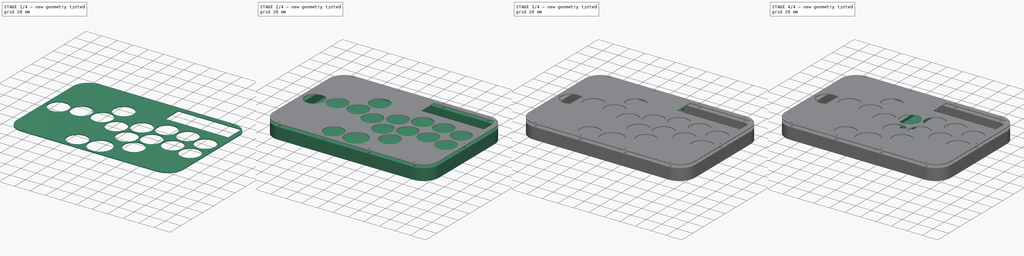
[diagram: build sequence overview — one tinted view per stage of 4, left to right]
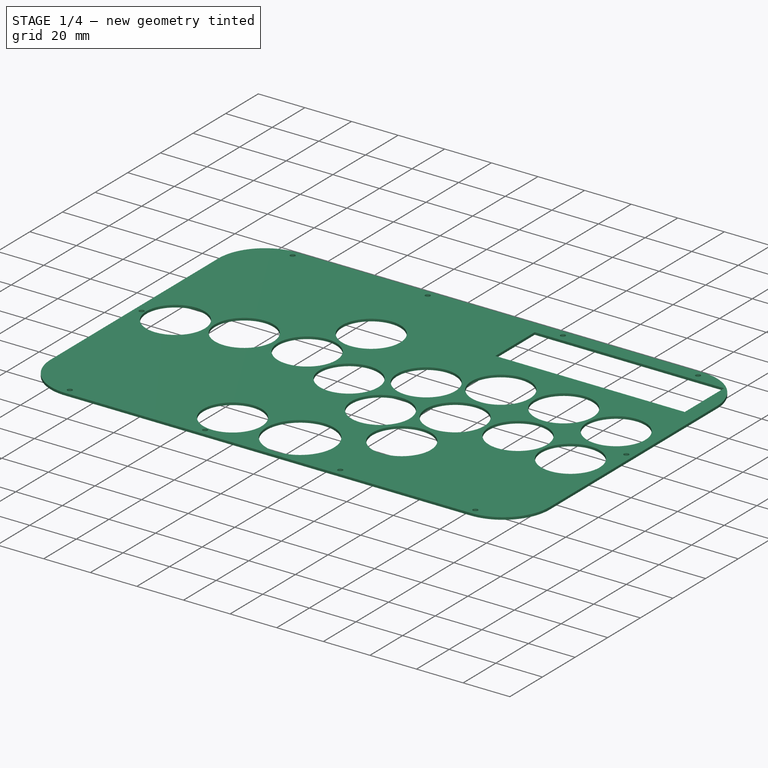
[diagram: stage 1 of 4 — iso view after this stage's code; geometry added in this stage tinted green]
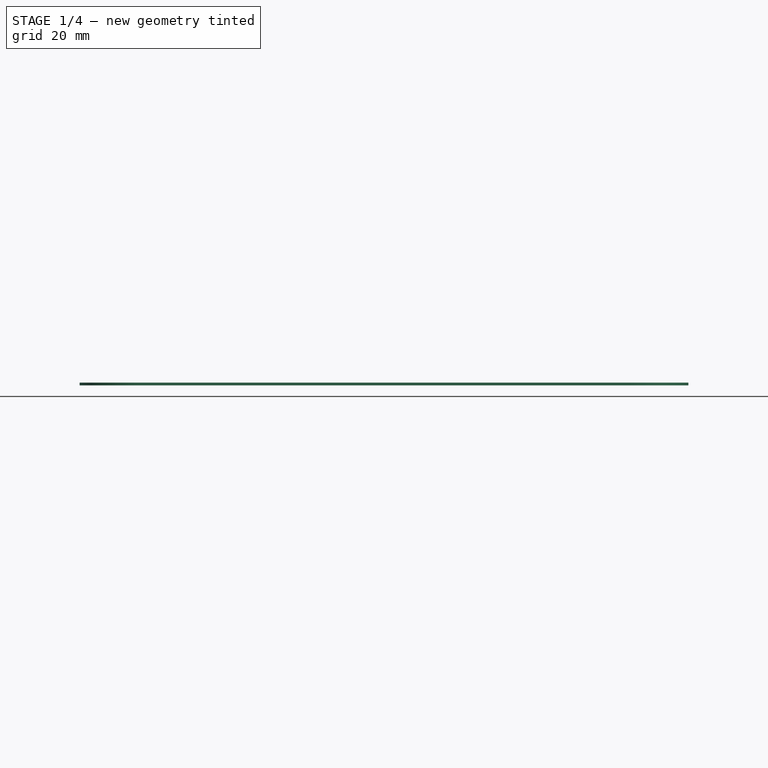
[diagram: stage 1 of 4 — front view after this stage's code; geometry added in this stage tinted green]
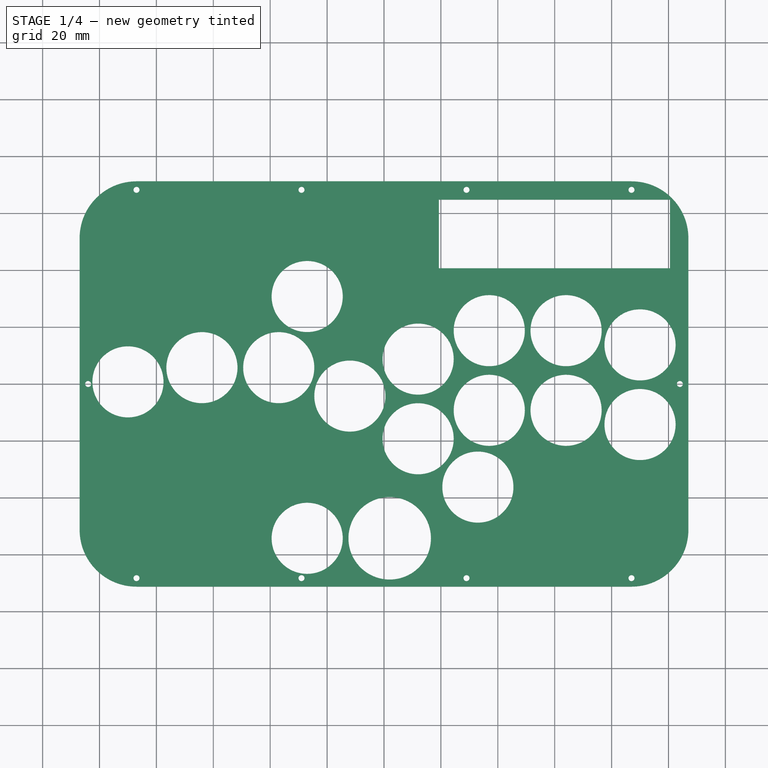
[diagram: stage 1 of 4 — top view after this stage's code; geometry added in this stage tinted green]
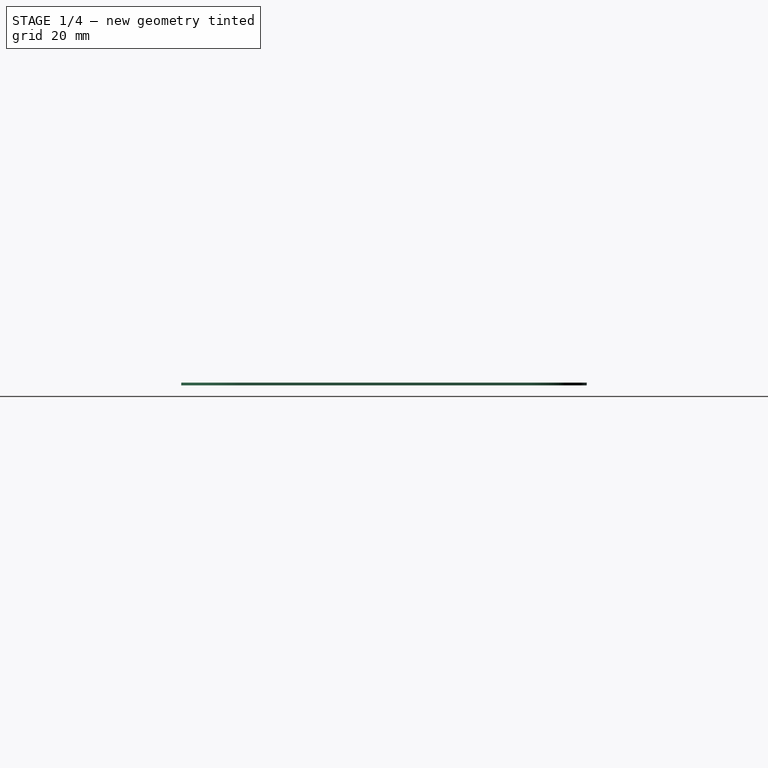
[diagram: stage 1 of 4 — right view after this stage's code; geometry added in this stage tinted green]
FCSTD DOCUMENT  (FreeCAD 1.0R39285 (Git))
Label: case
License: All rights reserved
LicenseURL: https://en.wikipedia.org/wiki/All_rights_reserved
objects: Sketcher::SketchObject×9, PartDesign::Pocket×7, PartDesign::Pad×4, PartDesign::Body×3, PartDesign::SubShapeBinder×2, TechDraw::DrawProjGroupItem×2, TechDraw::DrawSVGTemplate×1, TechDraw::DrawPage×1
note: 56 computed .brp shape members not serialized (recipe doc carries the construction recipe); baked Part::Feature solids carry a one-line shape summary decoded from their .brp

FEATURE [Sketcher::SketchObject] Sketch002  label="plate"
  ArcFitTolerance = 1e-06
  FullyConstrained = true
  MakeInternals = false
  sketch-geometry (153):
    g0: LineSegment StartX=-87 StartY=-71.25 StartZ=0 EndX=87 EndY=-71.25 EndZ=0
    g1: LineSegment StartX=107 StartY=-51.25 StartZ=0 EndX=107 EndY=51.25 EndZ=0
    g2: LineSegment StartX=87 StartY=71.25 StartZ=0 EndX=-87 EndY=71.25 EndZ=0
    g3: LineSegment StartX=-107 StartY=51.25 StartZ=0 EndX=-107 EndY=-51.25 EndZ=0
    g4: ArcOfCircle CenterX=-87 CenterY=51.25 CenterZ=0 NormalX=0 NormalY=0 NormalZ=1 AngleXU=0 Radius=20 StartAngle=1.5708 EndAngle=3.14159
    g5: GeomPoint [constr] X=-107 Y=71.25 Z=0
    g6: ArcOfCircle CenterX=-87 CenterY=-51.25 CenterZ=0 NormalX=0 NormalY=0 NormalZ=1 AngleXU=0 Radius=20 StartAngle=3.14159 EndAngle=4.71239
    g7: GeomPoint [constr] X=-107 Y=-71.25 Z=0
    g8: ArcOfCircle CenterX=87 CenterY=-51.25 CenterZ=0 NormalX=0 NormalY=0 NormalZ=1 AngleXU=0 Radius=20 StartAngle=4.71239 EndAngle=6.28319
    g9: GeomPoint [constr] X=107 Y=-71.25 Z=0
    g10: ArcOfCircle CenterX=87 CenterY=51.25 CenterZ=0 NormalX=0 NormalY=0 NormalZ=1 AngleXU=0 Radius=20 StartAngle=0 EndAngle=1.5708
    g11: GeomPoint [constr] X=107 Y=71.25 Z=0
    g12: ArcOfCircle [constr] CenterX=-87 CenterY=51.25 CenterZ=0 NormalX=0 NormalY=0 NormalZ=1 AngleXU=0 Radius=17 StartAngle=1.5708 EndAngle=3.14159
    g13: LineSegment [constr] StartX=-104 StartY=51.25 StartZ=0 EndX=-104 EndY=-51.25 EndZ=0
    g14: ArcOfCircle [constr] CenterX=-87 CenterY=-51.25 CenterZ=0 NormalX=0 NormalY=0 NormalZ=1 AngleXU=0 Radius=17 StartAngle=3.14159 EndAngle=4.71239
    g15: LineSegment [constr] StartX=-87 StartY=-68.25 StartZ=0 EndX=87 EndY=-68.25 EndZ=0
    g16: ArcOfCircle [constr] CenterX=87 CenterY=-51.25 CenterZ=0 NormalX=0 NormalY=0 NormalZ=1 AngleXU=0 Radius=17 StartAngle=4.71239 EndAngle=6.28319
    g17: LineSegment [constr] StartX=104 StartY=-51.25 StartZ=0 EndX=104 EndY=51.25 EndZ=0
    g18: ArcOfCircle [constr] CenterX=87 CenterY=51.25 CenterZ=0 NormalX=0 NormalY=0 NormalZ=1 AngleXU=0 Radius=17 StartAngle=0 EndAngle=1.5708
    g19: LineSegment [constr] StartX=87 StartY=68.25 StartZ=0 EndX=-87 EndY=68.25 EndZ=0
    g20: Circle CenterX=-87 CenterY=-68.25 CenterZ=0 NormalX=0 NormalY=0 NormalZ=1 AngleXU=0 Radius=1.05
    g21: Circle CenterX=87 CenterY=-68.25 CenterZ=0 NormalX=0 NormalY=0 NormalZ=1 AngleXU=0 Radius=1.05
    g22: Circle CenterX=87 CenterY=68.25 CenterZ=0 NormalX=0 NormalY=0 NormalZ=1 AngleXU=0 Radius=1.05
    g23: Circle CenterX=-87 CenterY=68.25 CenterZ=0 NormalX=0 NormalY=0 NormalZ=1 AngleXU=0 Radius=1.05
    g24: LineSegment [constr] StartX=-5 StartY=-61.25 StartZ=0 EndX=-5 EndY=-71.25 EndZ=0
    g25: Circle CenterX=-104 CenterY=3.5e-15 CenterZ=0 NormalX=0 NormalY=0 NormalZ=1 AngleXU=0 Radius=1.05
    g26: Circle CenterX=104 CenterY=1.7e-15 CenterZ=0 NormalX=0 NormalY=0 NormalZ=1 AngleXU=0 Radius=1.05
    g27: Circle CenterX=29 CenterY=68.25 CenterZ=0 NormalX=0 NormalY=0 NormalZ=1 AngleXU=0 Radius=1.05
    g28: Circle CenterX=29 CenterY=-68.25 CenterZ=0 NormalX=0 NormalY=0 NormalZ=1 AngleXU=0 Radius=1.05
    g29: LineSegment [constr] StartX=-37 StartY=5.75 StartZ=0 EndX=-64 EndY=5.75 EndZ=0
    g30: LineSegment [constr] StartX=12 StartY=8.75 StartZ=0 EndX=12 EndY=-19.25 EndZ=0
    g31: LineSegment [constr] StartX=37 StartY=18.75 StartZ=0 EndX=37 EndY=-9.25 EndZ=0
    g32: LineSegment [constr] StartX=64 StartY=18.75 StartZ=0 EndX=64 EndY=-9.25 EndZ=0
    g33: LineSegment [constr] StartX=90 StartY=13.75 StartZ=0 EndX=90 EndY=-14.25 EndZ=0
    g34: LineSegment [constr] StartX=64 StartY=18.75 StartZ=0 EndX=37 EndY=18.75 EndZ=0
    g35: LineSegment [constr] StartX=37 StartY=18.75 StartZ=0 EndX=12 EndY=18.75 EndZ=0
    g36: LineSegment [constr] StartX=12 StartY=18.75 StartZ=0 EndX=12 EndY=8.75 EndZ=0
    g37: LineSegment [constr] StartX=-37 StartY=5.75 StartZ=0 EndX=-12 EndY=5.75 EndZ=0
    g38: LineSegment [constr] StartX=-12 StartY=5.75 StartZ=0 EndX=-12 EndY=-4.25 EndZ=0
    g39: LineSegment [constr] StartX=64 StartY=18.75 StartZ=0 EndX=90 EndY=18.75 EndZ=0
    g40: LineSegment [constr] StartX=90 StartY=18.75 StartZ=0 EndX=90 EndY=13.75 EndZ=0
    g41: LineSegment [constr] StartX=-64 StartY=5.75 StartZ=0 EndX=-90 EndY=5.75 EndZ=0
    g42: LineSegment [constr] StartX=-90 StartY=5.75 StartZ=0 EndX=-90 EndY=0.75 EndZ=0
    g43: LineSegment [constr] StartX=2 StartY=-54.25 StartZ=0 EndX=-27 EndY=-54.25 EndZ=0
    g44: LineSegment [constr] StartX=-37 StartY=5.75 StartZ=0 EndX=-37 EndY=30.75 EndZ=0
    g45: LineSegment [constr] StartX=-37 StartY=30.75 StartZ=0 EndX=-27 EndY=30.75 EndZ=0
    g46: LineSegment StartX=-97 StartY=7.75 StartZ=0 EndX=-97 EndY=-6.25 EndZ=0
    g47: LineSegment StartX=-97 StartY=-6.25 StartZ=0 EndX=-83 EndY=-6.25 EndZ=0
    g48: LineSegment StartX=-83 StartY=-6.25 StartZ=0 EndX=-83 EndY=7.75 EndZ=0
    g49: LineSegment StartX=-83 StartY=7.75 StartZ=0 EndX=-97 EndY=7.75 EndZ=0
    g50: GeomPoint [constr] X=-90 Y=0.75 Z=0
    g51: LineSegment StartX=-71 StartY=12.75 StartZ=0 EndX=-71 EndY=-1.25 EndZ=0
    g52: LineSegment StartX=-71 StartY=-1.25 StartZ=0 EndX=-57 EndY=-1.25 EndZ=0
    g53: LineSegment StartX=-57 StartY=-1.25 StartZ=0 EndX=-57 EndY=12.75 EndZ=0
    g54: LineSegment StartX=-57 StartY=12.75 StartZ=0 EndX=-71 EndY=12.75 EndZ=0
    g55: GeomPoint [constr] X=-64 Y=5.75 Z=0
    g56: LineSegment StartX=-44 StartY=12.75 StartZ=0 EndX=-44 EndY=-1.25 EndZ=0
    g57: LineSegment StartX=-44 StartY=-1.25 StartZ=0 EndX=-30 EndY=-1.25 EndZ=0
    g58: LineSegment StartX=-30 StartY=-1.25 StartZ=0 EndX=-30 EndY=12.75 EndZ=0
    g59: LineSegment StartX=-30 StartY=12.75 StartZ=0 EndX=-44 EndY=12.75 EndZ=0
    g60: GeomPoint [constr] X=-37 Y=5.75 Z=0
    g61: LineSegment StartX=-34 StartY=37.75 StartZ=0 EndX=-34 EndY=23.75 EndZ=0
    g62: LineSegment StartX=-34 StartY=23.75 StartZ=0 EndX=-20 EndY=23.75 EndZ=0
    g63: LineSegment StartX=-20 StartY=23.75 StartZ=0 EndX=-20 EndY=37.75 EndZ=0
    g64: LineSegment StartX=-20 StartY=37.75 StartZ=0 EndX=-34 EndY=37.75 EndZ=0
    g65: GeomPoint [constr] X=-27 Y=30.75 Z=0
    g66: LineSegment StartX=-19 StartY=2.75 StartZ=0 EndX=-19 EndY=-11.25 EndZ=0
    g67: LineSegment StartX=-19 StartY=-11.25 StartZ=0 EndX=-5 EndY=-11.25 EndZ=0
    g68: LineSegment StartX=-5 StartY=-11.25 StartZ=0 EndX=-5 EndY=2.75 EndZ=0
    g69: LineSegment StartX=-5 StartY=2.75 StartZ=0 EndX=-19 EndY=2.75 EndZ=0
    g70: GeomPoint [constr] X=-12 Y=-4.25 Z=0
    g71: LineSegment StartX=-34 StartY=-47.25 StartZ=0 EndX=-34 EndY=-61.25 EndZ=0
    g72: LineSegment StartX=-34 StartY=-61.25 StartZ=0 EndX=-20 EndY=-61.25 EndZ=0
    g73: LineSegment StartX=-20 StartY=-61.25 StartZ=0 EndX=-20 EndY=-47.25 EndZ=0
    g74: LineSegment StartX=-20 StartY=-47.25 StartZ=0 EndX=-34 EndY=-47.25 EndZ=0
    g75: GeomPoint [constr] X=-27 Y=-54.25 Z=0
    g76: LineSegment StartX=5 StartY=-12.25 StartZ=0 EndX=5 EndY=-26.25 EndZ=0
    g77: LineSegment StartX=5 StartY=-26.25 StartZ=0 EndX=19 EndY=-26.25 EndZ=0
    g78: LineSegment StartX=19 StartY=-26.25 StartZ=0 EndX=19 EndY=-12.25 EndZ=0
    g79: LineSegment StartX=19 StartY=-12.25 StartZ=0 EndX=5 EndY=-12.25 EndZ=0
    g80: GeomPoint [constr] X=12 Y=-19.25 Z=0
    g81: LineSegment StartX=26 StartY=-29.25 StartZ=0 EndX=26 EndY=-43.25 EndZ=0
    g82: LineSegment StartX=26 StartY=-43.25 StartZ=0 EndX=40 EndY=-43.25 EndZ=0
    g83: LineSegment StartX=40 StartY=-43.25 StartZ=0 EndX=40 EndY=-29.25 EndZ=0
    g84: LineSegment StartX=40 StartY=-29.25 StartZ=0 EndX=26 EndY=-29.25 EndZ=0
    g85: GeomPoint [constr] X=33 Y=-36.25 Z=0
    g86: LineSegment StartX=-5 StartY=-47.25 StartZ=0 EndX=-5 EndY=-61.25 EndZ=0
    g87: LineSegment StartX=-5 StartY=-61.25 StartZ=0 EndX=9 EndY=-61.25 EndZ=0
    g88: LineSegment StartX=9 StartY=-61.25 StartZ=0 EndX=9 EndY=-47.25 EndZ=0
    g89: LineSegment StartX=9 StartY=-47.25 StartZ=0 EndX=-5 EndY=-47.25 EndZ=0
    g90: GeomPoint [constr] X=2 Y=-54.25 Z=0
    g91: LineSegment StartX=5 StartY=15.75 StartZ=0 EndX=5 EndY=1.75 EndZ=0
    g92: LineSegment StartX=5 StartY=1.75 StartZ=0 EndX=19 EndY=1.75 EndZ=0
    g93: LineSegment StartX=19 StartY=1.75 StartZ=0 EndX=19 EndY=15.75 EndZ=0
    g94: LineSegment StartX=19 StartY=15.75 StartZ=0 EndX=5 EndY=15.75 EndZ=0
    g95: GeomPoint [constr] X=12 Y=8.75 Z=0
    g96: LineSegment StartX=30 StartY=25.75 StartZ=0 EndX=30 EndY=11.75 EndZ=0
    g97: LineSegment StartX=30 StartY=11.75 StartZ=0 EndX=44 EndY=11.75 EndZ=0
    g98: LineSegment StartX=44 StartY=11.75 StartZ=0 EndX=44 EndY=25.75 EndZ=0
    g99: LineSegment StartX=44 StartY=25.75 StartZ=0 EndX=30 EndY=25.75 EndZ=0
    g100: GeomPoint [constr] X=37 Y=18.75 Z=0
    g101: LineSegment StartX=30 StartY=-2.25 StartZ=0 EndX=30 EndY=-16.25 EndZ=0
    g102: LineSegment StartX=30 StartY=-16.25 StartZ=0 EndX=44 EndY=-16.25 EndZ=0
    g103: LineSegment StartX=44 StartY=-16.25 StartZ=0 EndX=44 EndY=-2.25 EndZ=0
    g104: LineSegment StartX=44 StartY=-2.25 StartZ=0 EndX=30 EndY=-2.25 EndZ=0
    g105: GeomPoint [constr] X=37 Y=-9.25 Z=0
    g106: LineSegment StartX=57 StartY=-2.25 StartZ=0 EndX=57 EndY=-16.25 EndZ=0
    g107: LineSegment StartX=57 StartY=-16.25 StartZ=0 EndX=71 EndY=-16.25 EndZ=0
    g108: LineSegment StartX=71 StartY=-16.25 StartZ=0 EndX=71 EndY=-2.25 EndZ=0
    g109: LineSegment StartX=71 StartY=-2.25 StartZ=0 EndX=57 EndY=-2.25 EndZ=0
    g110: GeomPoint [constr] X=64 Y=-9.25 Z=0
    g111: LineSegment StartX=83 StartY=-7.25 StartZ=0 EndX=83 EndY=-21.25 EndZ=0
    g112: LineSegment StartX=83 StartY=-21.25 StartZ=0 EndX=97 EndY=-21.25 EndZ=0
    g113: LineSegment StartX=97 StartY=-21.25 StartZ=0 EndX=97 EndY=-7.25 EndZ=0
    g114: LineSegment StartX=97 StartY=-7.25 StartZ=0 EndX=83 EndY=-7.25 EndZ=0
    g115: GeomPoint [constr] X=90 Y=-14.25 Z=0
    g116: LineSegment StartX=97 StartY=20.75 StartZ=0 EndX=97 EndY=6.75 EndZ=0
    g117: LineSegment StartX=97 StartY=6.75 StartZ=0 EndX=83 EndY=6.75 EndZ=0
    g118: LineSegment StartX=83 StartY=6.75 StartZ=0 EndX=83 EndY=20.75 EndZ=0
    g119: LineSegment StartX=83 StartY=20.75 StartZ=0 EndX=97 EndY=20.75 EndZ=0
    g120: GeomPoint [constr] X=90 Y=13.75 Z=0
    g121: LineSegment StartX=57 StartY=25.75 StartZ=0 EndX=57 EndY=11.75 EndZ=0
    g122: LineSegment StartX=57 StartY=11.75 StartZ=0 EndX=71 EndY=11.75 EndZ=0
    g123: LineSegment StartX=71 StartY=11.75 StartZ=0 EndX=71 EndY=25.75 EndZ=0
    g124: LineSegment StartX=71 StartY=25.75 StartZ=0 EndX=57 EndY=25.75 EndZ=0
    g125: GeomPoint [constr] X=64 Y=18.75 Z=0
    g126: LineSegment StartX=43.4 StartY=45.75 StartZ=0 EndX=57.4 EndY=45.75 EndZ=0
    g127: LineSegment StartX=57.4 StartY=45.75 StartZ=0 EndX=57.4 EndY=59.75 EndZ=0
    g128: LineSegment StartX=57.4 StartY=59.75 StartZ=0 EndX=43.4 EndY=59.75 EndZ=0
    g129: LineSegment StartX=43.4 StartY=59.75 StartZ=0 EndX=43.4 EndY=45.75 EndZ=0
    g130: LineSegment StartX=62.45 StartY=59.75 StartZ=0 EndX=62.45 EndY=45.75 EndZ=0
    g131: LineSegment StartX=62.45 StartY=45.75 StartZ=0 EndX=76.45 EndY=45.75 EndZ=0
    g132: LineSegment StartX=76.45 StartY=45.75 StartZ=0 EndX=76.45 EndY=59.75 EndZ=0
    g133: LineSegment StartX=76.45 StartY=59.75 StartZ=0 EndX=62.45 EndY=59.75 EndZ=0
    g134: LineSegment StartX=81.5 StartY=59.75 StartZ=0 EndX=81.5 EndY=45.75 EndZ=0
    g135: LineSegment StartX=81.5 StartY=45.75 StartZ=0 EndX=95.5 EndY=45.75 EndZ=0
    g136: LineSegment StartX=95.5 StartY=45.75 StartZ=0 EndX=95.5 EndY=59.75 EndZ=0
    g137: LineSegment StartX=95.5 StartY=59.75 StartZ=0 EndX=81.5 EndY=59.75 EndZ=0
    g138: LineSegment StartX=24.35 StartY=45.75 StartZ=0 EndX=38.35 EndY=45.75 EndZ=0
    g139: LineSegment StartX=38.35 StartY=45.75 StartZ=0 EndX=38.35 EndY=59.75 EndZ=0
    g140: LineSegment StartX=38.35 StartY=59.75 StartZ=0 EndX=24.35 EndY=59.75 EndZ=0
    g141: LineSegment StartX=24.35 StartY=59.75 StartZ=0 EndX=24.35 EndY=45.75 EndZ=0
    g142: LineSegment [constr] StartX=-97 StartY=7.75 StartZ=0 EndX=-107 EndY=7.75 EndZ=0
    g143: LineSegment [constr] StartX=97 StartY=-21.25 StartZ=0 EndX=107 EndY=-21.25 EndZ=0
    g144: LineSegment [constr] StartX=81.5 StartY=52.75 StartZ=0 EndX=76.45 EndY=52.75 EndZ=0
    g145: LineSegment [constr] StartX=62.45 StartY=52.75 StartZ=0 EndX=57.4 EndY=52.75 EndZ=0
    g146: LineSegment [constr] StartX=38.35 StartY=52.75 StartZ=0 EndX=43.4 EndY=52.75 EndZ=0
    g147: GeomPoint [constr] X=104 Y=71.25 Z=0
    g148: GeomPoint [constr] X=104 Y=-71.25 Z=0
    g149: GeomPoint [constr] X=-104 Y=-71.25 Z=0
    g150: GeomPoint [constr] X=-104 Y=71.25 Z=0
    g151: Circle CenterX=-29 CenterY=68.25 CenterZ=0 NormalX=0 NormalY=0 NormalZ=1 AngleXU=0 Radius=1.05
    g152: Circle CenterX=-29 CenterY=-68.25 CenterZ=0 NormalX=0 NormalY=0 NormalZ=1 AngleXU=0 Radius=1.05
  constraints (376):
    c: Horizontal(g2)
    c: Vertical(g3)
    c: PointOnObject(g5,g2)
    c: PointOnObject(g5,g3)
    c: Tangent(g2,g4) = -1.5708
    c: Tangent(g3,g4) = -1.5708
    c: PointOnObject(g7,g0)
    c: PointOnObject(g7,g3)
    c: Tangent(g0,g6) = -1.5708
    c: Tangent(g3,g6) = -1.5708
    c: PointOnObject(g9,g0)
    c: PointOnObject(g9,g1)
    c: Tangent(g0,g8) = -1.5708
    c: Tangent(g1,g8) = -1.5708
    c: PointOnObject(g11,g1)
    c: PointOnObject(g11,g2)
    c: Tangent(g1,g10) = -1.5708
    c: Tangent(g2,g10) = -1.5708
    c: Equal(g10,g8)
    c: Equal(g8,g6)
    c: Equal(g6,g4)
    c: Radius(g8) = 20
    c: Tangent(g12,g13) = -1.5708
    c: Tangent(g12,g19) = -1.5708
    c: Tangent(g13,g14) = -1.5708
    c: Tangent(g14,g15) = -1.5708
    c: Tangent(g15,g16) = -1.5708
    c: Tangent(g16,g17) = -1.5708
    c: Tangent(g17,g18) = -1.5708
    c: Tangent(g18,g19) = -1.5708
    c: Parallel(g19,g2)
    c: Parallel(g13,g3)
    c: Parallel(g15,g0)
    c: Coincident(g21,g15)
    c: Equal(g21,g20)
    c: Coincident(g20,g14)
    c: Equal(g23,g22)
    c: Coincident(g23,g12)
    c: Coincident(g22,g18)
    c: PointOnObject(g24,g0)
    c: Equal(g26,g25)
    c: Equal(g25,g23)
    c: Distance(g2,g19) = 3
    c: Vertical(g24)
    c: Horizontal(g29)
    c: Vertical(g30)
    c: Vertical(g31)
    c: Vertical(g32)
    c: Vertical(g33)
    c: Equal(g33,g32)
    c: Equal(g32,g31)
    c: Equal(g31,g30)
    c: Horizontal(g34)
    c: Equal(g29,g34)
    c: Horizontal(g35)
    c: Vertical(g36)
    c: Horizontal(g37)
    c: Vertical(g38)
    c: Coincident(g37,g38)
    c: Equal(g38,g36)
    c: Equal(g37,g35)
    c: Horizontal(g39)
    c: Coincident(g40,g39)
    c: Vertical(g40)
    c: Horizontal(g41)
    c: Coincident(g42,g41)
    c: Vertical(g42)
    c: Equal(g42,g40)
    c: Equal(g39,g41)
    c: Distance(g30,g30) = 28
    c: Distance(g36,g36) = 10
    c: Distance(g35,g35) = 25
    c: Distance(g40,g40) = 5
    c: Distance(g34,g34) = 27
    c: Distance(g39,g39) = 26
    c: Horizontal(g43)
    c: Distance(g43,g43) = 29
    c: Coincident(g45,g44)
    c: Horizontal(g45)
    c: Vertical(g44)
    c: DistanceY(g44,g44) = 25
    c: Distance(g45,g45) = 10
    c: Coincident(g46,g47)
    c: Coincident(g47,g48)
    c: Coincident(g48,g49)
    c: Coincident(g49,g46)
    c: Vertical(g46)
    c: Vertical(g48)
    c: Horizontal(g47)
    c: Horizontal(g49)
    c: Symmetric(g48,g46,g50)
    c: Coincident(g50,g42)
    c: Coincident(g51,g52)
    c: Coincident(g52,g53)
    c: Coincident(g53,g54)
    c: Coincident(g54,g51)
    c: Vertical(g51)
    c: Vertical(g53)
    c: Horizontal(g52)
    c: Horizontal(g54)
    c: Symmetric(g53,g51,g55)
    c: Coincident(g56,g57)
    c: Coincident(g57,g58)
    c: Coincident(g58,g59)
    c: Coincident(g59,g56)
    c: Vertical(g56)
    c: Vertical(g58)
    c: Horizontal(g57)
    c: Horizontal(g59)
    c: Symmetric(g58,g56,g60)
    c: Coincident(g61,g62)
    c: Coincident(g62,g63)
    c: Coincident(g63,g64)
    c: Coincident(g64,g61)
    c: Vertical(g61)
    c: Vertical(g63)
    c: Horizontal(g62)
    c: Horizontal(g64)
    c: Symmetric(g63,g61,g65)
    c: Coincident(g66,g67)
    c: Coincident(g67,g68)
    c: Coincident(g68,g69)
    c: Coincident(g69,g66)
    c: Vertical(g66)
    c: Vertical(g68)
    c: Horizontal(g67)
    c: Horizontal(g69)
    c: Symmetric(g68,g66,g70)
    c: Coincident(g71,g72)
    c: Coincident(g72,g73)
    c: Coincident(g73,g74)
    c: Coincident(g74,g71)
    c: Vertical(g71)
    c: Vertical(g73)
    c: Horizontal(g72)
    c: Horizontal(g74)
    c: Symmetric(g73,g71,g75)
    c: Symmetric(g0,g0,g-2)
    c: Coincident(g18,g10)
    c: Coincident(g12,g4)
    c: Coincident(g14,g6)
    c: Coincident(g16,g8)
    c: Symmetric(g1,g1,g-1)
    c: Coincident(g76,g77)
    c: Coincident(g77,g78)
    c: Coincident(g78,g79)
    c: Coincident(g79,g76)
    c: Vertical(g76)
    c: Vertical(g78)
    c: Horizontal(g77)
    c: Horizontal(g79)
    c: Symmetric(g78,g76,g80)
    c: Coincident(g81,g82)
    c: Coincident(g82,g83)
    c: Coincident(g83,g84)
    c: Coincident(g84,g81)
    c: Vertical(g81)
    c: Vertical(g83)
    c: Horizontal(g82)
    c: Horizontal(g84)
    c: Symmetric(g83,g81,g85)
    c: Coincident(g86,g87)
    c: Coincident(g87,g88)
    c: Coincident(g88,g89)
    c: Coincident(g89,g86)
    c: Vertical(g86)
    c: Vertical(g88)
    c: Horizontal(g87)
    c: Horizontal(g89)
    c: Symmetric(g88,g86,g90)
    c: Coincident(g91,g92)
    c: Coincident(g92,g93)
    c: Coincident(g93,g94)
    c: Coincident(g94,g91)
    c: Vertical(g91)
    c: Vertical(g93)
    c: Horizontal(g92)
    c: Horizontal(g94)
    c: Symmetric(g93,g91,g95)
    c: Coincident(g96,g97)
    c: Coincident(g97,g98)
    c: Coincident(g98,g99)
    c: Coincident(g99,g96)
    c: Vertical(g96)
    c: Vertical(g98)
    c: Horizontal(g97)
    c: Horizontal(g99)
    c: Symmetric(g98,g96,g100)
    c: Coincident(g101,g102)
    c: Coincident(g102,g103)
    c: Coincident(g103,g104)
    c: Coincident(g104,g101)
    c: Vertical(g101)
    c: Vertical(g103)
    c: Horizontal(g102)
    c: Horizontal(g104)
    c: Symmetric(g103,g101,g105)
    c: Coincident(g106,g107)
    c: Coincident(g107,g108)
    c: Coincident(g108,g109)
    c: Coincident(g109,g106)
    c: Vertical(g106)
    c: Vertical(g108)
    c: Horizontal(g107)
    c: Horizontal(g109)
    c: Symmetric(g108,g106,g110)
    c: Coincident(g111,g112)
    c: Coincident(g112,g113)
    c: Coincident(g113,g114)
    c: Coincident(g114,g111)
    c: Vertical(g111)
    c: Vertical(g113)
    c: Horizontal(g112)
    c: Horizontal(g114)
    c: Symmetric(g113,g111,g115)
    c: Coincident(g116,g117)
    c: Coincident(g117,g118)
    c: Coincident(g118,g119)
    c: Coincident(g119,g116)
    c: Vertical(g116)
    c: Vertical(g118)
    c: Horizontal(g117)
    c: Horizontal(g119)
    c: Symmetric(g118,g116,g120)
    c: Coincident(g121,g122)
    c: Coincident(g122,g123)
    c: Coincident(g123,g124)
    c: Coincident(g124,g121)
    c: Vertical(g121)
    c: Vertical(g123)
    c: Horizontal(g122)
    c: Horizontal(g124)
    c: Symmetric(g123,g121,g125)
    c: Equal(g109,g108)
    c: Equal(g108,g119)
    c: Equal(g119,g118)
    c: Equal(g118,g112)
    c: Equal(g112,g113)
    c: Equal(g113,g124)
    c: Equal(g124,g123)
    c: Equal(g123,g99)
    c: Equal(g99,g98)
    c: Equal(g98,g102)
    c: Equal(g102,g103)
    c: Equal(g103,g83)
    c: Equal(g83,g82)
    c: Equal(g82,g77)
    c: Equal(g77,g78)
    c: Equal(g78,g91)
    c: Equal(g91,g92)
    c: Equal(g92,g89)
    c: Equal(g89,g88)
    c: Equal(g88,g74)
    c: Equal(g74,g71)
    c: Equal(g71,g66)
    c: Equal(g66,g67)
    c: Equal(g67,g56)
    c: Equal(g56,g57)
    c: Equal(g57,g51)
    c: Equal(g51,g52)
    c: Equal(g52,g47)
    c: Equal(g47,g46)
    c: Equal(g46,g63)
    c: Equal(g63,g62)
    c: Distance(g87,g87) = 14
    c: Coincident(g24,g86)
    c: Coincident(g126,g127)
    c: Coincident(g127,g128)
    c: Coincident(g128,g129)
    c: Coincident(g129,g126)
    c: Horizontal(g126)
    c: Horizontal(g128)
    c: Vertical(g127)
    c: Vertical(g129)
    c: Coincident(g130,g131)
    c: Coincident(g131,g132)
    c: Coincident(g132,g133)
    c: Coincident(g133,g130)
    c: Vertical(g130)
    c: Vertical(g132)
    c: Horizontal(g133)
    c: Coincident(g134,g135)
    c: Coincident(g135,g136)
    c: Coincident(g136,g137)
    c: Coincident(g137,g134)
    c: Vertical(g134)
    c: Horizontal(g137)
    c: Coincident(g138,g139)
    c: Coincident(g139,g140)
    c: Coincident(g140,g141)
    c: Coincident(g141,g138)
    c: Horizontal(g140)
    c: Vertical(g139)
    c: Vertical(g141)
    c: Equal(g128,g127)
    c: Equal(g127,g133)
    c: Equal(g133,g132)
    c: Equal(g132,g137)
    c: Equal(g137,g136)
    c: Equal(g136,g140)
    c: Equal(g140,g139)
    c: Equal(g139,g64)
    c: Tangent(g138,g126)
    c: Tangent(g126,g131)
    c: Tangent(g135,g131)
    c: Coincident(g142,g46)
    c: PointOnObject(g142,g3)
    c: Horizontal(g142)
    c: Coincident(g143,g112)
    c: PointOnObject(g143,g1)
    c: Horizontal(g143)
    c: Equal(g24,g142)
    c: Distance(g143,g143) = 10
    c: Symmetric(g134,g134,g144)
    c: Symmetric(g132,g132,g144)
    c: Symmetric(g130,g130,g145)
    c: Symmetric(g127,g127,g145)
    c: Symmetric(g139,g139,g146)
    c: Symmetric(g129,g129,g146)
    c: Equal(g146,g145)
    c: Equal(g145,g144)
    c: Distance(g144,g144) = 5.05
    c: Distance(g135,g124) = 20
    c: Symmetric(g17,g18,g136)
    c: Vertical(g136)
    c: Equal(g143,g24)
    c: PointOnObject(g147,g17)
    c: PointOnObject(g148,g17)
    c: PointOnObject(g149,g13)
    c: PointOnObject(g150,g13)
    c: PointOnObject(g149,g0)
    c: PointOnObject(g148,g0)
    c: PointOnObject(g147,g2)
    c: PointOnObject(g150,g2)
    c: Diameter(g21) = 2.1
    c: Equal(g21,g28)
    c: Equal(g20,g25)
    c: Equal(g23,g27)
    c: Equal(g151,g27)
    c: Symmetric(g27,g12,g151)
    c: Symmetric(g151,g18,g27)
    c: Equal(g152,g28)
    c: Symmetric(g15,g152,g28)
    c: Symmetric(g14,g28,g152)
    c: Symmetric(g149,g150,g25)
    c: Symmetric(g148,g147,g26)
    c: DistanceX(g38,g30) = 24
    c: DistanceY(g30,g38) = 15
    c: Coincident(g30,g36)
    c: Coincident(g30,g95)
    c: Coincident(g36,g35)
    c: Coincident(g30,g80)
    c: Coincident(g38,g70)
    c: Coincident(g35,g31)
    c: Coincident(g35,g34)
    c: Coincident(g100,g31)
    c: DistanceX(g85,g31) = 4
    c: DistanceY(g85,g31) = 27
    c: Coincident(g32,g110)
    c: Coincident(g32,g34)
    c: Coincident(g125,g39)
    c: Coincident(g125,g32)
    c: Coincident(g120,g33)
    c: Coincident(g33,g40)
    c: Coincident(g115,g33)
    c: Coincident(g105,g31)
    c: Coincident(g44,g29)
    c: Coincident(g37,g29)
    c: Coincident(g60,g29)
    c: Coincident(g65,g45)
    c: DistanceY(g43,g30) = 35
    c: Coincident(g43,g90)
    c: Coincident(g75,g43)
    c: DistanceX(g43,g30) = 10
    c: Coincident(g41,g55)
    c: Coincident(g41,g29)
FEATURE [PartDesign::Pad] Pad
  Direction = (0,0,1)
  Length = 3
  Length2 = 10
  Profile = -> Sketch002
  ReferenceAxis = -> Sketch002 [N_Axis]
  Refine = true
  Suppressed = false
  Type = 0
FEATURE [Sketcher::SketchObject] Sketch
  ArcFitTolerance = 1e-06
  AttachmentSupport = -> [Pad]
  ExternalGeometry = -> [Pad]
  FullyConstrained = true
  MakeInternals = false
  MapMode = 5
  Placement = pos=(0,0,0) rot=(1,0,0;3.14159rad)
  sketch-geometry (100):
    g0: LineSegment StartX=-92 StartY=7.25 StartZ=0 EndX=-92 EndY=-8.75 EndZ=0
    g1: LineSegment StartX=-92 StartY=-8.75 StartZ=0 EndX=-88 EndY=-8.75 EndZ=0
    g2: LineSegment StartX=-88 StartY=-8.75 StartZ=0 EndX=-88 EndY=7.25 EndZ=0
    g3: LineSegment StartX=-88 StartY=7.25 StartZ=0 EndX=-92 EndY=7.25 EndZ=0
    g4: GeomPoint X=-90 Y=-0.75 Z=0
    g5: LineSegment StartX=-66 StartY=-13.75 StartZ=0 EndX=-62 EndY=-13.75 EndZ=0
    g6: LineSegment StartX=-62 StartY=-13.75 StartZ=0 EndX=-62 EndY=2.25 EndZ=0
    g7: LineSegment StartX=-62 StartY=2.25 StartZ=0 EndX=-66 EndY=2.25 EndZ=0
    g8: LineSegment StartX=-66 StartY=2.25 StartZ=0 EndX=-66 EndY=-13.75 EndZ=0
    g9: GeomPoint [constr] X=-64 Y=-5.75 Z=0
    g10: LineSegment StartX=-39 StartY=-13.75 StartZ=0 EndX=-35 EndY=-13.75 EndZ=0
    g11: LineSegment StartX=-35 StartY=-13.75 StartZ=0 EndX=-35 EndY=2.25 EndZ=0
    g12: LineSegment StartX=-35 StartY=2.25 StartZ=0 EndX=-39 EndY=2.25 EndZ=0
    g13: LineSegment StartX=-39 StartY=2.25 StartZ=0 EndX=-39 EndY=-13.75 EndZ=0
    g14: GeomPoint [constr] X=-37 Y=-5.75 Z=0
    g15: LineSegment StartX=-29 StartY=-38.75 StartZ=0 EndX=-25 EndY=-38.75 EndZ=0
    g16: LineSegment StartX=-25 StartY=-38.75 StartZ=0 EndX=-25 EndY=-22.75 EndZ=0
    g17: LineSegment StartX=-25 StartY=-22.75 StartZ=0 EndX=-29 EndY=-22.75 EndZ=0
    g18: LineSegment StartX=-29 StartY=-22.75 StartZ=0 EndX=-29 EndY=-38.75 EndZ=0
    g19: GeomPoint [constr] X=-27 Y=-30.75 Z=0
    g20: LineSegment StartX=-14 StartY=-3.75 StartZ=0 EndX=-10 EndY=-3.75 EndZ=0
    g21: LineSegment StartX=-10 StartY=-3.75 StartZ=0 EndX=-10 EndY=12.25 EndZ=0
    g22: LineSegment StartX=-10 StartY=12.25 StartZ=0 EndX=-14 EndY=12.25 EndZ=0
    g23: LineSegment StartX=-14 StartY=12.25 StartZ=0 EndX=-14 EndY=-3.75 EndZ=0
    g24: GeomPoint [constr] X=-12 Y=4.25 Z=0
    g25: LineSegment StartX=10 StartY=-16.75 StartZ=0 EndX=14 EndY=-16.75 EndZ=0
    g26: LineSegment StartX=14 StartY=-16.75 StartZ=0 EndX=14 EndY=-0.75 EndZ=0
    g27: LineSegment StartX=14 StartY=-0.75 StartZ=0 EndX=10 EndY=-0.75 EndZ=0
    g28: LineSegment StartX=10 StartY=-0.75 StartZ=0 EndX=10 EndY=-16.75 EndZ=0
    g29: GeomPoint [constr] X=12 Y=-8.75 Z=0
    g30: LineSegment StartX=10 StartY=11.25 StartZ=0 EndX=14 EndY=11.25 EndZ=0
    g31: LineSegment StartX=14 StartY=11.25 StartZ=0 EndX=14 EndY=27.25 EndZ=0
    g32: LineSegment StartX=14 StartY=27.25 StartZ=0 EndX=10 EndY=27.25 EndZ=0
    g33: LineSegment StartX=10 StartY=27.25 StartZ=0 EndX=10 EndY=11.25 EndZ=0
    g34: GeomPoint [constr] X=12 Y=19.25 Z=0
    g35: LineSegment StartX=35 StartY=-26.75 StartZ=0 EndX=39 EndY=-26.75 EndZ=0
    g36: LineSegment StartX=39 StartY=-26.75 StartZ=0 EndX=39 EndY=-10.75 EndZ=0
    g37: LineSegment StartX=39 StartY=-10.75 StartZ=0 EndX=35 EndY=-10.75 EndZ=0
    g38: LineSegment StartX=35 StartY=-10.75 StartZ=0 EndX=35 EndY=-26.75 EndZ=0
    g39: GeomPoint [constr] X=37 Y=-18.75 Z=0
    g40: LineSegment StartX=35 StartY=1.25 StartZ=0 EndX=39 EndY=1.25 EndZ=0
    g41: LineSegment StartX=39 StartY=1.25 StartZ=0 EndX=39 EndY=17.25 EndZ=0
    g42: LineSegment StartX=39 StartY=17.25 StartZ=0 EndX=35 EndY=17.25 EndZ=0
    g43: LineSegment StartX=35 StartY=17.25 StartZ=0 EndX=35 EndY=1.25 EndZ=0
    g44: GeomPoint [constr] X=37 Y=9.25 Z=0
    g45: LineSegment StartX=62 StartY=1.25 StartZ=0 EndX=66 EndY=1.25 EndZ=0
    g46: LineSegment StartX=66 StartY=1.25 StartZ=0 EndX=66 EndY=17.25 EndZ=0
    g47: LineSegment StartX=66 StartY=17.25 StartZ=0 EndX=62 EndY=17.25 EndZ=0
    g48: LineSegment StartX=62 StartY=17.25 StartZ=0 EndX=62 EndY=1.25 EndZ=0
    g49: GeomPoint [constr] X=64 Y=9.25 Z=0
    g50: LineSegment StartX=62 StartY=-10.75 StartZ=0 EndX=62 EndY=-26.75 EndZ=0
    g51: LineSegment StartX=62 StartY=-26.75 StartZ=0 EndX=66 EndY=-26.75 EndZ=0
    g52: LineSegment StartX=66 StartY=-26.75 StartZ=0 EndX=66 EndY=-10.75 EndZ=0
    g53: LineSegment StartX=66 StartY=-10.75 StartZ=0 EndX=62 EndY=-10.75 EndZ=0
    g54: GeomPoint [constr] X=64 Y=-18.75 Z=0
    g55: LineSegment StartX=88 StartY=-5.75 StartZ=0 EndX=88 EndY=-21.75 EndZ=0
    g56: LineSegment StartX=88 StartY=-21.75 StartZ=0 EndX=92 EndY=-21.75 EndZ=0
    g57: LineSegment StartX=92 StartY=-21.75 StartZ=0 EndX=92 EndY=-5.75 EndZ=0
    g58: LineSegment StartX=92 StartY=-5.75 StartZ=0 EndX=88 EndY=-5.75 EndZ=0
    g59: GeomPoint [constr] X=90 Y=-13.75 Z=0
    g60: LineSegment StartX=88 StartY=22.25 StartZ=0 EndX=88 EndY=6.25 EndZ=0
    g61: LineSegment StartX=88 StartY=6.25 StartZ=0 EndX=92 EndY=6.25 EndZ=0
    g62: LineSegment StartX=92 StartY=6.25 StartZ=0 EndX=92 EndY=22.25 EndZ=0
    g63: LineSegment StartX=92 StartY=22.25 StartZ=0 EndX=88 EndY=22.25 EndZ=0
    g64: GeomPoint [constr] X=90 Y=14.25 Z=0
    g65: LineSegment StartX=31 StartY=44.25 StartZ=0 EndX=31 EndY=28.25 EndZ=0
    g66: LineSegment StartX=31 StartY=28.25 StartZ=0 EndX=35 EndY=28.25 EndZ=0
    g67: LineSegment StartX=35 StartY=28.25 StartZ=0 EndX=35 EndY=44.25 EndZ=0
    g68: LineSegment StartX=35 StartY=44.25 StartZ=0 EndX=31 EndY=44.25 EndZ=0
    g69: GeomPoint [constr] X=33 Y=36.25 Z=0
    g70: LineSegment StartX=3.9e-15 StartY=62.25 StartZ=0 EndX=3.9e-15 EndY=46.25 EndZ=0
    g71: LineSegment StartX=3.9e-15 StartY=46.25 StartZ=0 EndX=4 EndY=46.25 EndZ=0
    g72: LineSegment StartX=4 StartY=46.25 StartZ=0 EndX=4 EndY=62.25 EndZ=0
    g73: LineSegment StartX=4 StartY=62.25 StartZ=0 EndX=4e-15 EndY=62.25 EndZ=0
    g74: GeomPoint [constr] X=2 Y=54.25 Z=0
    g75: LineSegment StartX=-29 StartY=62.25 StartZ=0 EndX=-29 EndY=46.25 EndZ=0
    g76: LineSegment StartX=-29 StartY=46.25 StartZ=0 EndX=-25 EndY=46.25 EndZ=0
    g77: LineSegment StartX=-25 StartY=46.25 StartZ=0 EndX=-25 EndY=62.25 EndZ=0
    g78: LineSegment StartX=-25 StartY=62.25 StartZ=0 EndX=-29 EndY=62.25 EndZ=0
    g79: GeomPoint [constr] X=-27 Y=54.25 Z=0
    g80: LineSegment StartX=29.35 StartY=-60.75 StartZ=0 EndX=33.35 EndY=-60.75 EndZ=0
    g81: LineSegment StartX=33.35 StartY=-60.75 StartZ=0 EndX=33.35 EndY=-44.75 EndZ=0
    g82: LineSegment StartX=33.35 StartY=-44.75 StartZ=0 EndX=29.35 EndY=-44.75 EndZ=0
    g83: LineSegment StartX=29.35 StartY=-44.75 StartZ=0 EndX=29.35 EndY=-60.75 EndZ=0
    g84: GeomPoint [constr] X=31.35 Y=-52.75 Z=0
    g85: LineSegment StartX=48.4 StartY=-60.75 StartZ=0 EndX=52.4 EndY=-60.75 EndZ=0
    g86: LineSegment StartX=52.4 StartY=-60.75 StartZ=0 EndX=52.4 EndY=-44.75 EndZ=0
    g87: LineSegment StartX=52.4 StartY=-44.75 StartZ=0 EndX=48.4 EndY=-44.75 EndZ=0
    g88: LineSegment StartX=48.4 StartY=-44.75 StartZ=0 EndX=48.4 EndY=-60.75 EndZ=0
    g89: GeomPoint [constr] X=50.4 Y=-52.75 Z=0
    g90: LineSegment StartX=67.45 StartY=-44.75 StartZ=0 EndX=67.45 EndY=-60.75 EndZ=0
    g91: LineSegment StartX=67.45 StartY=-60.75 StartZ=0 EndX=71.45 EndY=-60.75 EndZ=0
    g92: LineSegment StartX=71.45 StartY=-60.75 StartZ=0 EndX=71.45 EndY=-44.75 EndZ=0
    g93: LineSegment StartX=71.45 StartY=-44.75 StartZ=0 EndX=67.45 EndY=-44.75 EndZ=0
    g94: GeomPoint [constr] X=69.45 Y=-52.75 Z=0
    g95: LineSegment StartX=86.5 StartY=-44.75 StartZ=0 EndX=86.5 EndY=-60.75 EndZ=0
    g96: LineSegment StartX=86.5 StartY=-60.75 StartZ=0 EndX=90.5 EndY=-60.75 EndZ=0
    g97: LineSegment StartX=90.5 StartY=-60.75 StartZ=0 EndX=90.5 EndY=-44.75 EndZ=0
    g98: LineSegment StartX=90.5 StartY=-44.75 StartZ=0 EndX=86.5 EndY=-44.75 EndZ=0
    g99: GeomPoint [constr] X=88.5 Y=-52.75 Z=0
  constraints (240):
    c: Coincident(g0,g1)
    c: Coincident(g1,g2)
    c: Coincident(g2,g3)
    c: Coincident(g3,g0)
    c: Vertical(g0)
    c: Vertical(g2)
    c: Horizontal(g1)
    c: Horizontal(g3)
    c: DistanceY(g2,g2) = 16
    c: Distance(g1,g1) = 4
    c: Symmetric(g0,g1,g4)
    c: Coincident(g5,g6)
    c: Coincident(g6,g7)
    c: Coincident(g7,g8)
    c: Coincident(g8,g5)
    c: Horizontal(g5)
    c: Horizontal(g7)
    c: Vertical(g6)
    c: Vertical(g8)
    c: Symmetric(g7,g5,g9)
    c: Equal(g7,g3)
    c: Equal(g8,g0)
    c: Coincident(g10,g11)
    c: Coincident(g11,g12)
    c: Coincident(g12,g13)
    c: Coincident(g13,g10)
    c: Horizontal(g10)
    c: Horizontal(g12)
    c: Vertical(g11)
    c: Vertical(g13)
    c: Symmetric(g12,g10,g14)
    c: Equal(g13,g8)
    c: Equal(g10,g5)
    c: Coincident(g15,g16)
    c: Coincident(g16,g17)
    c: Coincident(g17,g18)
    c: Coincident(g18,g15)
    c: Horizontal(g15)
    c: Horizontal(g17)
    c: Vertical(g16)
    c: Vertical(g18)
    c: Symmetric(g17,g15,g19)
    c: Equal(g16,g11)
    c: Equal(g17,g12)
    c: Coincident(g20,g21)
    c: Coincident(g21,g22)
    c: Coincident(g22,g23)
    c: Coincident(g23,g20)
    c: Horizontal(g20)
    c: Horizontal(g22)
    c: Vertical(g21)
    c: Vertical(g23)
    c: Symmetric(g22,g20,g24)
    c: Equal(g16,g23)
    c: Equal(g15,g22)
    c: Coincident(g25,g26)
    c: Coincident(g26,g27)
    c: Coincident(g27,g28)
    c: Coincident(g28,g25)
    c: Horizontal(g25)
    c: Horizontal(g27)
    c: Vertical(g26)
    c: Vertical(g28)
    c: Symmetric(g27,g25,g29)
    c: Coincident(g30,g31)
    c: Coincident(g31,g32)
    c: Coincident(g32,g33)
    c: Coincident(g33,g30)
    c: Horizontal(g30)
    c: Horizontal(g32)
    c: Vertical(g31)
    c: Vertical(g33)
    c: Symmetric(g32,g30,g34)
    c: Coincident(g35,g36)
    c: Coincident(g36,g37)
    c: Coincident(g37,g38)
    c: Coincident(g38,g35)
    c: Horizontal(g35)
    c: Horizontal(g37)
    c: Vertical(g36)
    c: Vertical(g38)
    c: Symmetric(g37,g35,g39)
    c: Coincident(g40,g41)
    c: Coincident(g41,g42)
    c: Coincident(g42,g43)
    c: Coincident(g43,g40)
    c: Horizontal(g40)
    c: Horizontal(g42)
    c: Vertical(g41)
    c: Vertical(g43)
    c: Symmetric(g42,g40,g44)
    c: Coincident(g45,g46)
    c: Coincident(g46,g47)
    c: Coincident(g47,g48)
    c: Coincident(g48,g45)
    c: Horizontal(g45)
    c: Horizontal(g47)
    c: Vertical(g46)
    c: Vertical(g48)
    c: Symmetric(g47,g45,g49)
    c: Coincident(g50,g51)
    c: Coincident(g51,g52)
    c: Coincident(g52,g53)
    c: Coincident(g53,g50)
    c: Vertical(g50)
    c: Vertical(g52)
    c: Horizontal(g51)
    c: Horizontal(g53)
    c: Symmetric(g52,g50,g54)
    c: Coincident(g55,g56)
    c: Coincident(g56,g57)
    c: Coincident(g57,g58)
    c: Coincident(g58,g55)
    c: Vertical(g55)
    c: Vertical(g57)
    c: Horizontal(g56)
    c: Horizontal(g58)
    c: Symmetric(g57,g55,g59)
    c: Coincident(g60,g61)
    c: Coincident(g61,g62)
    c: Coincident(g62,g63)
    c: Coincident(g63,g60)
    c: Vertical(g60)
    c: Vertical(g62)
    c: Horizontal(g61)
    c: Horizontal(g63)
    c: Symmetric(g62,g60,g64)
    c: Coincident(g65,g66)
    c: Coincident(g66,g67)
    c: Coincident(g67,g68)
    c: Coincident(g68,g65)
    c: Vertical(g65)
    c: Vertical(g67)
    c: Horizontal(g66)
    c: Horizontal(g68)
    c: Symmetric(g67,g65,g69)
    c: Coincident(g70,g71)
    c: Coincident(g71,g72)
    c: Coincident(g72,g73)
    c: Coincident(g73,g70)
    c: Vertical(g70)
    c: Vertical(g72)
    c: Horizontal(g71)
    c: Horizontal(g73)
    c: Symmetric(g72,g70,g74)
    c: Coincident(g75,g76)
    c: Coincident(g76,g77)
    c: Coincident(g77,g78)
    c: Coincident(g78,g75)
    c: Vertical(g75)
    c: Vertical(g77)
    c: Horizontal(g76)
    c: Horizontal(g78)
    c: Symmetric(g77,g75,g79)
    c: Equal(g37,g40)
    c: Equal(g40,g27)
    c: Equal(g27,g30)
    c: Equal(g30,g53)
    c: Equal(g53,g45)
    c: Equal(g45,g58)
    c: Equal(g58,g61)
    c: Equal(g61,g66)
    c: Equal(g66,g71)
    c: Equal(g71,g76)
    c: Equal(g76,g22)
    c: Equal(g57,g46)
    c: Equal(g46,g62)
    c: Equal(g62,g52)
    c: Equal(g52,g36)
    c: Equal(g36,g41)
    c: Equal(g41,g31)
    c: Equal(g31,g26)
    c: Equal(g26,g21)
    c: Equal(g21,g67)
    c: Equal(g67,g72)
    c: Equal(g72,g77)
    c: Coincident(g80,g81)
    c: Coincident(g81,g82)
    c: Coincident(g82,g83)
    c: Coincident(g83,g80)
    c: Horizontal(g80)
    c: Horizontal(g82)
    c: Vertical(g81)
    c: Vertical(g83)
    c: Symmetric(g82,g80,g84)
    c: Coincident(g85,g86)
    c: Coincident(g86,g87)
    c: Coincident(g87,g88)
    c: Coincident(g88,g85)
    c: Horizontal(g85)
    c: Horizontal(g87)
    c: Vertical(g86)
    c: Vertical(g88)
    c: Symmetric(g87,g85,g89)
    c: Coincident(g90,g91)
    c: Coincident(g91,g92)
    c: Coincident(g92,g93)
    c: Coincident(g93,g90)
    c: Vertical(g90)
    c: Vertical(g92)
    c: Horizontal(g91)
    c: Horizontal(g93)
    c: Symmetric(g92,g90,g94)
    c: Coincident(g95,g96)
    c: Coincident(g96,g97)
    c: Coincident(g97,g98)
    c: Coincident(g98,g95)
    c: Vertical(g95)
    c: Vertical(g97)
    c: Horizontal(g96)
    c: Horizontal(g98)
    c: Symmetric(g97,g95,g99)
    c: Equal(g96,g91)
    c: Equal(g91,g85)
    c: Equal(g85,g80)
    c: Equal(g80,g56)
    c: Equal(g97,g92)
    c: Equal(g92,g86)
    c: Equal(g86,g81)
    c: Equal(g81,g57)
    c: Symmetric(g-9,g-10,g99)
    c: Symmetric(g-8,g-7,g94)
    c: Symmetric(g-4,g-5,g89)
    c: Symmetric(g-3,g-6,g84)
    c: Symmetric(g-16,g-15,g39)
    c: Symmetric(g-18,g-17,g29)
    c: Symmetric(g-12,g-11,g54)
    c: Symmetric(g-13,g-14,g59)
    c: Symmetric(g-26,g-25,g64)
    c: Symmetric(g-23,g-24,g49)
    c: Symmetric(g-22,g-21,g44)
    c: Symmetric(g-20,g-19,g34)
    c: Symmetric(g-28,g-27,g69)
    c: Symmetric(g-30,g-29,g74)
    c: Symmetric(g-42,g-41,g79)
    c: Symmetric(g-39,g-40,g24)
    c: Symmetric(g-32,g-31,g19)
    c: Symmetric(g-38,g-37,g14)
    c: Symmetric(g-36,g-35,g9)
    c: Symmetric(g-33,g-34,g4)
FEATURE [PartDesign::Pocket] Pocket
  BaseFeature = -> Pad
  Direction = (0,0,1)
  Length = 1.5
  Length2 = 5
  Profile = -> Sketch
  ReferenceAxis = -> Sketch [N_Axis]
  Refine = true
  Suppressed = false
  Type = 0
  expr: Length = abs(1.5 mm - <<Pad>>.Length)
FEATURE [PartDesign::Body] Body001  label="case"
  AllowCompound = false
  Group = -> [Binder,Sketch003,Pad001,Sketch004,Pocket001,Pad002,Sketch005,Pocket002,Pocket003,Sketch006,Pocket004,Sketch007,Pocket005,Sketch008,Pocket006]
  Origin = -> Origin001
  Tip = -> Pocket006
FEATURE [PartDesign::SubShapeBinder] Binder001
  BindCopyOnChange = 0
  BindMode = 0
  ClaimChildren = false
  Context = -> Body002 [Binder001.]
  Fuse = false
  MakeFace = true
  OffsetFill = false
  OffsetIntersection = false
  OffsetJoinType = 0
  OffsetOpenResult = false
  PartialLoad = false
  Refine = true
  Relative = true
  Support = -> [Body[Pocket.Face5]]
  _Version = 2
FEATURE [Sketcher::SketchObject] Sketch009
  ArcFitTolerance = 1e-06
  AttachmentOffset = pos=(0,0,0.5) rot=(0,0,1;0rad)
  AttachmentSupport = -> [Binder001]
  ExternalGeometry = -> [Binder001]
  FullyConstrained = true
  MakeInternals = false
  MapMode = 5
  Placement = pos=(0,0,3.5) rot=(0,0,1;0rad)
  sketch-geometry (42):
    g0: Circle CenterX=-64 CenterY=5.75 CenterZ=0 NormalX=0 NormalY=0 NormalZ=1 AngleXU=0 Radius=12.5
    g1: Circle CenterX=-27 CenterY=30.75 CenterZ=0 NormalX=0 NormalY=0 NormalZ=1 AngleXU=0 Radius=12.5
    g2: Circle CenterX=-37 CenterY=5.75 CenterZ=0 NormalX=0 NormalY=0 NormalZ=1 AngleXU=0 Radius=12.5
    g3: Circle CenterX=-90 CenterY=0.75 CenterZ=0 NormalX=0 NormalY=0 NormalZ=1 AngleXU=0 Radius=12.5
    g4: Circle CenterX=-12 CenterY=-4.25 CenterZ=0 NormalX=0 NormalY=0 NormalZ=1 AngleXU=0 Radius=12.5
    g5: Circle CenterX=2 CenterY=-54.25 CenterZ=0 NormalX=0 NormalY=0 NormalZ=1 AngleXU=0 Radius=14.5
    g6: Circle CenterX=-27 CenterY=-54.25 CenterZ=0 NormalX=0 NormalY=0 NormalZ=1 AngleXU=0 Radius=12.5
    g7: Circle CenterX=12 CenterY=-19.25 CenterZ=0 NormalX=0 NormalY=0 NormalZ=1 AngleXU=0 Radius=12.5
    g8: Circle CenterX=12 CenterY=8.75 CenterZ=0 NormalX=0 NormalY=0 NormalZ=1 AngleXU=0 Radius=12.5
    g9: Circle CenterX=37 CenterY=18.75 CenterZ=0 NormalX=0 NormalY=0 NormalZ=1 AngleXU=0 Radius=12.5
    g10: Circle CenterX=37 CenterY=-9.25 CenterZ=0 NormalX=0 NormalY=0 NormalZ=1 AngleXU=0 Radius=12.5
    g11: Circle CenterX=33 CenterY=-36.25 CenterZ=0 NormalX=0 NormalY=0 NormalZ=1 AngleXU=0 Radius=12.5
    g12: Circle CenterX=64 CenterY=-9.25 CenterZ=0 NormalX=0 NormalY=0 NormalZ=1 AngleXU=0 Radius=12.5
    g13: Circle CenterX=64 CenterY=18.75 CenterZ=0 NormalX=0 NormalY=0 NormalZ=1 AngleXU=0 Radius=12.5
    g14: Circle CenterX=90 CenterY=13.75 CenterZ=0 NormalX=0 NormalY=0 NormalZ=1 AngleXU=0 Radius=12.5
    g15: Circle CenterX=90 CenterY=-14.25 CenterZ=0 NormalX=0 NormalY=0 NormalZ=1 AngleXU=0 Radius=12.5
    g16: Circle CenterX=-87 CenterY=68.25 CenterZ=0 NormalX=0 NormalY=0 NormalZ=1 AngleXU=0 Radius=1.05
    g17: Circle CenterX=-29 CenterY=68.25 CenterZ=0 NormalX=0 NormalY=0 NormalZ=1 AngleXU=0 Radius=1.05
    g18: Circle CenterX=29 CenterY=68.25 CenterZ=0 NormalX=0 NormalY=0 NormalZ=1 AngleXU=0 Radius=1.05
    g19: Circle CenterX=87 CenterY=68.25 CenterZ=0 NormalX=0 NormalY=0 NormalZ=1 AngleXU=0 Radius=1.05
    g20: LineSegment StartX=19.3 StartY=64.8 StartZ=0 EndX=19.3 EndY=40.7 EndZ=0
    g21: LineSegment StartX=19.3 StartY=40.7 StartZ=0 EndX=100.55 EndY=40.7 EndZ=0
    g22: LineSegment StartX=100.55 StartY=40.7 StartZ=0 EndX=100.55 EndY=64.8 EndZ=0
    g23: LineSegment StartX=100.55 StartY=64.8 StartZ=0 EndX=19.3 EndY=64.8 EndZ=0
    g24: LineSegment [constr] StartX=95.5 StartY=59.75 StartZ=0 EndX=95.5 EndY=64.8 EndZ=0
    g25: LineSegment [constr] StartX=95.5 StartY=59.75 StartZ=0 EndX=100.55 EndY=59.75 EndZ=0
    g26: LineSegment [constr] StartX=24.35 StartY=45.75 StartZ=0 EndX=24.35 EndY=40.7 EndZ=0
    g27: LineSegment [constr] StartX=24.35 StartY=45.75 StartZ=0 EndX=19.3 EndY=45.75 EndZ=0
    g28: ArcOfCircle CenterX=87 CenterY=51.25 CenterZ=0 NormalX=0 NormalY=0 NormalZ=1 AngleXU=0 Radius=20 StartAngle=0 EndAngle=1.5708
    g29: ArcOfCircle CenterX=87 CenterY=-51.25 CenterZ=0 NormalX=0 NormalY=0 NormalZ=1 AngleXU=0 Radius=20 StartAngle=4.71239 EndAngle=6.28319
    g30: ArcOfCircle CenterX=-87 CenterY=-51.25 CenterZ=0 NormalX=0 NormalY=0 NormalZ=1 AngleXU=0 Radius=20 StartAngle=3.14159 EndAngle=4.71239
    g31: ArcOfCircle CenterX=-87 CenterY=51.25 CenterZ=0 NormalX=0 NormalY=0 NormalZ=1 AngleXU=0 Radius=20 StartAngle=1.57079 EndAngle=3.14159
    g32: LineSegment StartX=-87 StartY=71.25 StartZ=0 EndX=87 EndY=71.25 EndZ=0
    g33: LineSegment StartX=-107 StartY=51.25 StartZ=0 EndX=-107 EndY=-51.25 EndZ=0
    g34: LineSegment StartX=-87 StartY=-71.25 StartZ=0 EndX=87 EndY=-71.25 EndZ=0
    g35: Circle CenterX=-104 CenterY=0 CenterZ=0 NormalX=0 NormalY=0 NormalZ=1 AngleXU=0 Radius=1.05
    g36: Circle CenterX=-87 CenterY=-68.25 CenterZ=0 NormalX=0 NormalY=0 NormalZ=1 AngleXU=0 Radius=1.05
    g37: Circle CenterX=-29 CenterY=-68.25 CenterZ=0 NormalX=0 NormalY=0 NormalZ=1 AngleXU=0 Radius=1.05
    g38: Circle CenterX=29 CenterY=-68.25 CenterZ=0 NormalX=0 NormalY=0 NormalZ=1 AngleXU=0 Radius=1.05
    g39: Circle CenterX=87 CenterY=-68.25 CenterZ=0 NormalX=0 NormalY=0 NormalZ=1 AngleXU=0 Radius=1.05
    g40: Circle CenterX=104 CenterY=0 CenterZ=0 NormalX=0 NormalY=0 NormalZ=1 AngleXU=0 Radius=1.05
    g41: LineSegment StartX=107 StartY=-51.25 StartZ=0 EndX=107 EndY=51.25 EndZ=0
  constraints (96):
    c: Symmetric(g-9,g-10,g1)
    c: Symmetric(g-8,g-7,g2)
    c: Symmetric(g-6,g-5,g0)
    c: Symmetric(g-3,g-4,g3)
    c: Symmetric(g-26,g-25,g4)
    c: Symmetric(g-24,g-23,g7)
    c: Equal(g4,g2)
    c: Equal(g2,g1)
    c: Equal(g1,g0)
    c: Equal(g0,g3)
    c: Diameter(g3) = 25
    c: Symmetric(g-20,g-19,g6)
    c: Symmetric(g-22,g-21,g5)
    c: Diameter(g5) = 29
    c: Symmetric(g-35,g-34,g8)
    c: Symmetric(g-37,g-36,g9)
    c: Symmetric(g-32,g-33,g10)
    c: Symmetric(g-41,g-40,g13)
    c: Symmetric(g-43,g-42,g14)
    c: Symmetric(g-38,g-39,g12)
    c: Symmetric(g-45,g-44,g15)
    c: Equal(g15,g12)
    c: Equal(g12,g14)
    c: Equal(g14,g13)
    c: Equal(g13,g9)
    c: Equal(g9,g10)
    c: Equal(g10,g8)
    c: Equal(g8,g7)
    c: Equal(g7,g11)
    c: Equal(g11,g6)
    c: Equal(g6,g4)
    c: Symmetric(g-27,g-28,g11)
    c: Coincident(g16,g-12)
    c: Equal(g16,g-12)
    c: Coincident(g17,g-13)
    c: Equal(g17,g-13)
    c: Coincident(g18,g-48)
    c: Equal(g18,g-48)
    c: Coincident(g19,g-49)
    c: Equal(g19,g-49)
    c: Coincident(g20,g21)
    c: Coincident(g21,g22)
    c: Coincident(g22,g23)
    c: Coincident(g23,g20)
    c: Vertical(g20)
    c: Vertical(g22)
    c: Horizontal(g21)
    c: Horizontal(g23)
    c: Coincident(g24,g-46)
    c: PointOnObject(g24,g23)
    c: Vertical(g24)
    c: Coincident(g25,g24)
    c: PointOnObject(g25,g22)
    c: Coincident(g26,g-47)
    c: PointOnObject(g26,g21)
    c: Coincident(g27,g26)
    c: PointOnObject(g27,g20)
    c: Horizontal(g25)
    c: Horizontal(g27)
    c: Vertical(g26)
    c: Equal(g27,g26)
    c: Equal(g26,g24)
    c: Equal(g24,g25)
    c: Distance(g27,g27) = 5.05
    c: Coincident(g28,g-15)
    c: Coincident(g28,g-15)
    c: Coincident(g28,g-15)
    c: Coincident(g29,g-31)
    c: Coincident(g29,g-31)
    c: Coincident(g30,g-16)
    c: Coincident(g30,g-16)
    c: Coincident(g30,g-16)
    c: Coincident(g31,g-14)
    c: Coincident(g31,g-14)
    c: Coincident(g34,g30)
    c: Coincident(g29,g34)
    c: Horizontal(g34)
    c: Coincident(g33,g31)
    c: Coincident(g33,g30)
    c: Coincident(g32,g31)
    c: Coincident(g32,g28)
    c: Horizontal(g32)
    c: Coincident(g35,g-11)
    c: Equal(g35,g-11)
    c: Coincident(g36,g-17)
    c: Equal(g36,g-17)
    c: Coincident(g37,g-18)
    c: Equal(g37,g-18)
    c: Coincident(g38,g-29)
    c: Equal(g38,g-29)
    c: Coincident(g39,g-30)
    c: Equal(g39,g-30)
    c: Coincident(g40,g-50)
    c: Equal(g40,g-50)
    c: Coincident(g41,g29)
    c: Coincident(g41,g28)
FEATURE [PartDesign::Pad] Pad003
  Direction = (0,0,1)
  Length = 1
  Length2 = 10
  Profile = -> Sketch009
  ReferenceAxis = -> Sketch009 [N_Axis]
  Refine = true
  Suppressed = false
  Type = 0
FEATURE [PartDesign::Body] Body002  label="artplate"
  AllowCompound = false
  Group = -> [Binder001,Sketch009,Pad003]
  Origin = -> Origin002
  Tip = -> Pad003
FEATURE [TechDraw::DrawSVGTemplate] Template
  Height = 215.9
  Orientation = 1
  Template = <path>
  Width = 279.4
FEATURE [TechDraw::DrawProjGroupItem] View
  CoarseView = false
  Direction = (0,0,1)
  Focus = 100
  HardHidden = false
  IsoCount = 0
  IsoHidden = false
  IsoVisible = false
  LockPosition = false
  Perspective = false
  Rotation = 0
  RotationVector = (1,0,0)
  ScaleType = 0
  ScrubCount = 1
  SeamHidden = false
  SeamVisible = false
  SmoothHidden = false
  SmoothVisible = true
  Source = -> [Body002]
  Type = 0
  X = 139.7
  XDirection = (1,0,0)
  Y = 107.95
FEATURE [TechDraw::DrawProjGroupItem] View001
  CoarseView = false
  Direction = (0,0,1)
  Focus = 100
  HardHidden = false
  IsoCount = 0
  IsoHidden = false
  IsoVisible = false
  LockPosition = false
  Perspective = false
  Rotation = 0
  RotationVector = (1,0,0)
  ScaleType = 0
  ScrubCount = 1
  SeamHidden = false
  SeamVisible = false
  SmoothHidden = false
  SmoothVisible = true
  Source = -> [Body]
  Type = 0
  X = 139.7
  XDirection = (1,0,0)
  Y = 107.95
FEATURE [TechDraw::DrawPage] Page
  KeepUpdated = true
  NextBalloonIndex = 1
  ProjectionType = 0
  Template = -> Template
  Views = -> [View,View001]
note: 1 file-system path scrubbed to <path> (originals preserved in the JSON sidecar)
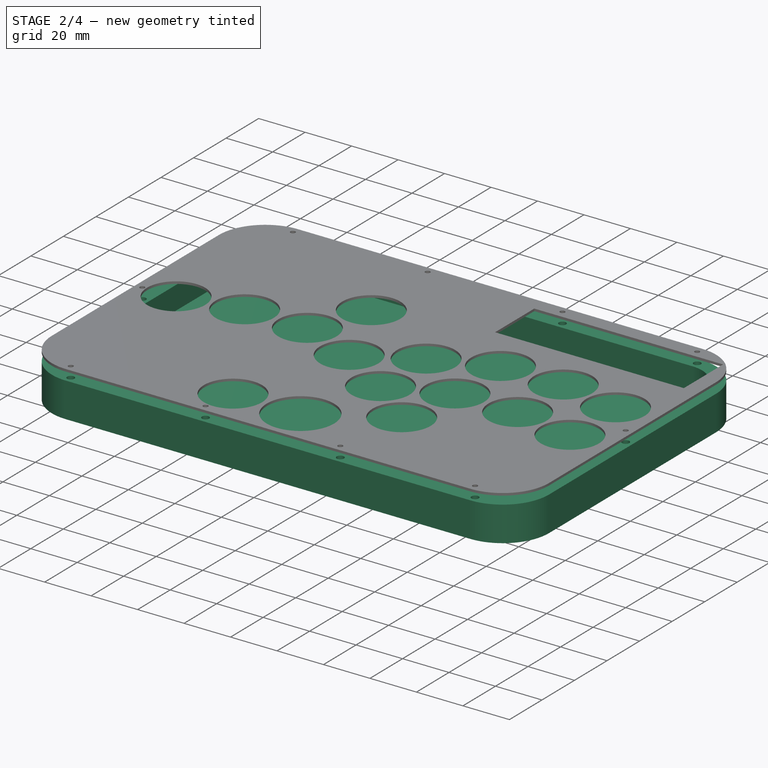
[diagram: stage 2 of 4 — iso view after this stage's code; geometry added in this stage tinted green]
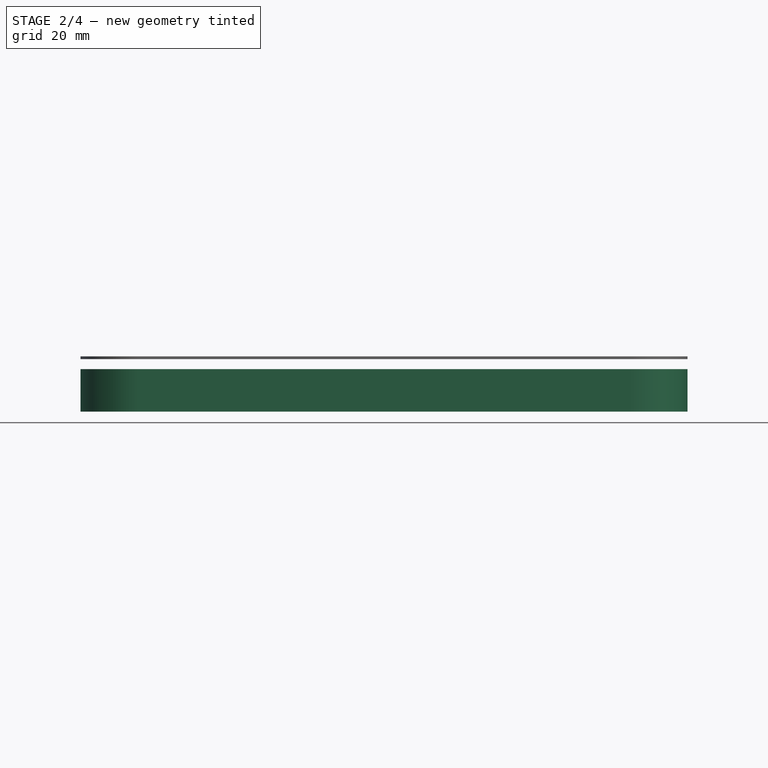
[diagram: stage 2 of 4 — front view after this stage's code; geometry added in this stage tinted green]
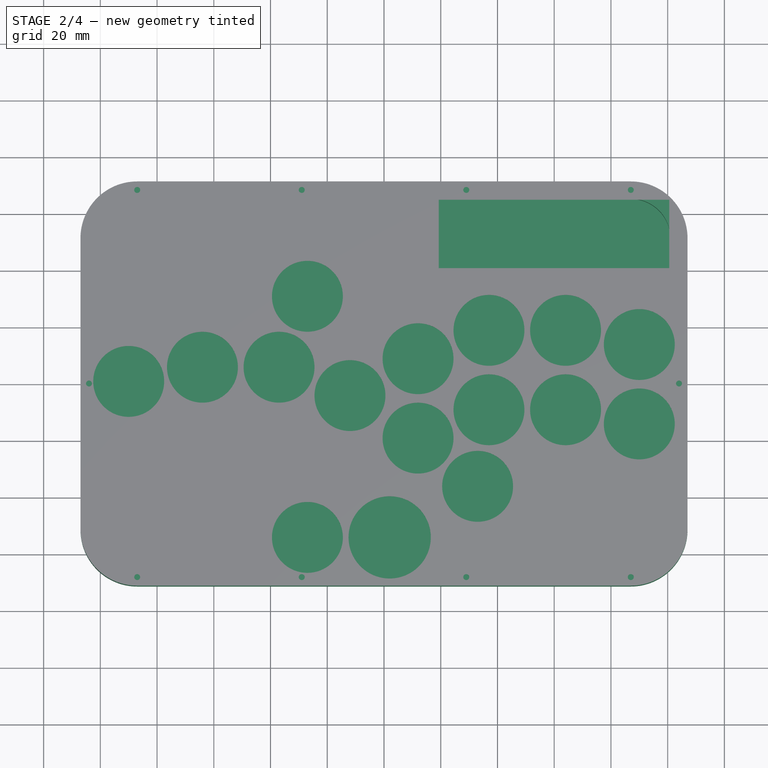
[diagram: stage 2 of 4 — top view after this stage's code; geometry added in this stage tinted green]
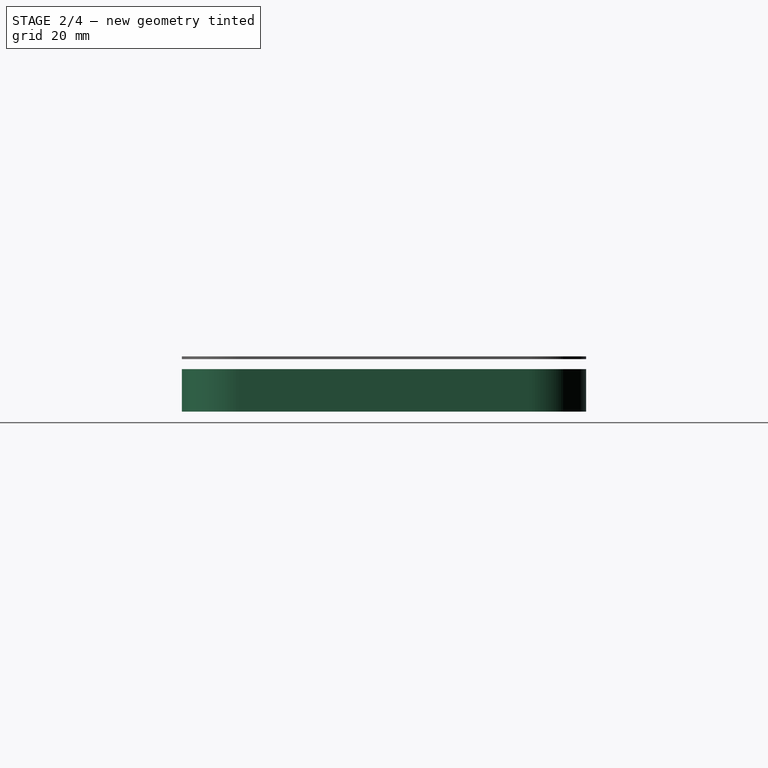
[diagram: stage 2 of 4 — right view after this stage's code; geometry added in this stage tinted green]
FEATURE [PartDesign::Body] Body  label="switchplate"
  AllowCompound = false
  Group = -> [Sketch002,Pad,Sketch,Pocket]
  Origin = -> Origin
  Tip = -> Pocket
FEATURE [PartDesign::SubShapeBinder] Binder
  BindCopyOnChange = 0
  BindMode = 0
  ClaimChildren = false
  Context = -> Body001 [Binder.]
  Fuse = false
  MakeFace = true
  OffsetFill = false
  OffsetIntersection = false
  OffsetJoinType = 0
  OffsetOpenResult = false
  PartialLoad = false
  Refine = true
  Relative = true
  Support = -> [Body[Pocket.]]
  _Version = 2
FEATURE [Sketcher::SketchObject] Sketch003  label="wall"
  ArcFitTolerance = 1e-06
  AttachmentSupport = -> [Binder]
  ExternalGeometry = -> [Binder]
  FullyConstrained = true
  MakeInternals = false
  MapMode = 5
  Placement = pos=(0,0,0) rot=(1,0,0;3.14159rad)
  sketch-geometry (18):
    g0: LineSegment StartX=107 StartY=51.25 StartZ=0 EndX=107 EndY=-51.25 EndZ=0
    g1: LineSegment StartX=87 StartY=-71.25 StartZ=0 EndX=-87 EndY=-71.25 EndZ=0
    g2: LineSegment StartX=-87 StartY=71.25 StartZ=0 EndX=87 EndY=71.25 EndZ=0
    g3: ArcOfCircle CenterX=87 CenterY=51.25 CenterZ=0 NormalX=0 NormalY=0 NormalZ=1 AngleXU=0 Radius=20 StartAngle=3e-16 EndAngle=1.5708
    g4: ArcOfCircle CenterX=87 CenterY=-51.25 CenterZ=0 NormalX=0 NormalY=0 NormalZ=1 AngleXU=0 Radius=20 StartAngle=4.71239 EndAngle=6.28319
    g5: ArcOfCircle CenterX=-87 CenterY=-51.25 CenterZ=0 NormalX=0 NormalY=0 NormalZ=1 AngleXU=0 Radius=20 StartAngle=3.14159 EndAngle=4.71239
    g6: ArcOfCircle CenterX=-87 CenterY=51.25 CenterZ=0 NormalX=0 NormalY=0 NormalZ=1 AngleXU=0 Radius=20 StartAngle=1.5708 EndAngle=3.14159
    g7: LineSegment StartX=-107 StartY=-51.25 StartZ=0 EndX=-107 EndY=51.25 EndZ=0
    g8: LineSegment StartX=-101 StartY=-51.25 StartZ=0 EndX=-101 EndY=51.25 EndZ=0
    g9: ArcOfCircle CenterX=-87 CenterY=51.25 CenterZ=0 NormalX=0 NormalY=0 NormalZ=1 AngleXU=0 Radius=14 StartAngle=1.5708 EndAngle=3.14159
    g10: LineSegment StartX=-87 StartY=65.25 StartZ=0 EndX=87 EndY=65.25 EndZ=0
    g11: ArcOfCircle CenterX=87 CenterY=51.25 CenterZ=0 NormalX=0 NormalY=0 NormalZ=1 AngleXU=0 Radius=14 StartAngle=-1.8e-15 EndAngle=1.5708
    g12: LineSegment StartX=101 StartY=51.25 StartZ=0 EndX=101 EndY=-51.25 EndZ=0
    g13: ArcOfCircle CenterX=87 CenterY=-51.25 CenterZ=0 NormalX=0 NormalY=0 NormalZ=1 AngleXU=0 Radius=14 StartAngle=4.71239 EndAngle=6.28319
    g14: LineSegment StartX=87 StartY=-65.25 StartZ=0 EndX=-87 EndY=-65.25 EndZ=0
    g15: ArcOfCircle CenterX=-87 CenterY=-51.25 CenterZ=0 NormalX=0 NormalY=0 NormalZ=1 AngleXU=0 Radius=14 StartAngle=3.14159 EndAngle=4.71239
    g16: LineSegment [constr] StartX=0 StartY=-65.25 StartZ=0 EndX=0 EndY=-71.25 EndZ=0
    g17: LineSegment [constr] StartX=101 StartY=-51.25 StartZ=0 EndX=107 EndY=-51.25 EndZ=0
  constraints (37):
    c: Coincident(g2,g-4)
    c: Coincident(g1,g-7)
    c: Coincident(g5,g1)
    c: Tangent(g5,g-6) = -1.5708
    c: Coincident(g6,g2)
    c: Tangent(g7,g5) = 1.5708
    c: Coincident(g7,g6)
    c: Tangent(g8,g9) = 1.5708
    c: Tangent(g8,g15) = 1.5708
    c: Tangent(g9,g10) = 1.5708
    c: Tangent(g10,g11) = 1.5708
    c: Tangent(g11,g12) = 1.5708
    c: Tangent(g14,g15) = 1.5708
    c: PointOnObject(g16,g14)
    c: PointOnObject(g16,g1)
    c: Coincident(g13,g4)
    c: Coincident(g15,g5)
    c: Parallel(g8,g7)
    c: Coincident(g9,g6)
    c: Parallel(g10,g2)
    c: Coincident(g11,g3)
    c: Coincident(g3,g-10)
    c: Coincident(g0,g3)
    c: Coincident(g0,g-10)
    c: Tangent(g2,g3) = 1.5708
    c: Coincident(g-8,g4)
    c: Tangent(g13,g14) = 1.5708
    c: Coincident(g4,g1)
    c: Coincident(g1,g-8)
    c: Tangent(g4,g0) = 1.5708
    c: Tangent(g12,g13) = 1.5708
    c: Coincident(g6,g-4)
    c: Symmetric(g1,g14,g-11)
    c: Tangent(g16,g-2)
    c: Coincident(g17,g12)
    c: Coincident(g17,g0)
    c: Distance(g17,g17) = 6  'thick'
FEATURE [PartDesign::Pad] Pad001
  Direction = (0,0,-1)
  Length = 15
  Length2 = 10
  Profile = -> Sketch003
  ReferenceAxis = -> Sketch003 [N_Axis]
  Refine = true
  Suppressed = false
  Type = 0
FEATURE [Sketcher::SketchObject] Sketch004
  ArcFitTolerance = 1e-06
  AttachmentSupport = -> [Pad001]
  ExternalGeometry = -> [Binder]
  FullyConstrained = true
  MakeInternals = false
  MapMode = 5
  sketch-geometry (10):
    g0: Circle CenterX=-87 CenterY=68.25 CenterZ=0 NormalX=0 NormalY=0 NormalZ=1 AngleXU=0 Radius=1.55
    g1: Circle CenterX=29 CenterY=68.25 CenterZ=0 NormalX=0 NormalY=0 NormalZ=1 AngleXU=0 Radius=1.55
    g2: Circle CenterX=87 CenterY=68.25 CenterZ=0 NormalX=0 NormalY=0 NormalZ=1 AngleXU=0 Radius=1.55
    g3: Circle CenterX=104 CenterY=0 CenterZ=0 NormalX=0 NormalY=0 NormalZ=1 AngleXU=0 Radius=1.55
    g4: Circle CenterX=87 CenterY=-68.25 CenterZ=0 NormalX=0 NormalY=0 NormalZ=1 AngleXU=0 Radius=1.55
    g5: Circle CenterX=29 CenterY=-68.25 CenterZ=0 NormalX=0 NormalY=0 NormalZ=1 AngleXU=0 Radius=1.55
    g6: Circle CenterX=-87 CenterY=-68.25 CenterZ=0 NormalX=0 NormalY=0 NormalZ=1 AngleXU=0 Radius=1.55
    g7: Circle CenterX=-104 CenterY=0 CenterZ=0 NormalX=0 NormalY=0 NormalZ=1 AngleXU=0 Radius=1.55
    g8: Circle CenterX=-29 CenterY=68.25 CenterZ=0 NormalX=0 NormalY=0 NormalZ=1 AngleXU=0 Radius=1.55
    g9: Circle CenterX=-29 CenterY=-68.25 CenterZ=0 NormalX=0 NormalY=0 NormalZ=1 AngleXU=0 Radius=1.55
  constraints (20):
    c: Coincident(g0,g-3)
    c: Coincident(g1,g-4)
    c: Coincident(g2,g-5)
    c: Coincident(g3,g-6)
    c: Coincident(g4,g-7)
    c: Coincident(g5,g-8)
    c: Coincident(g6,g-9)
    c: Coincident(g7,g-10)
    c: Equal(g1,g2)
    c: Equal(g2,g3)
    c: Equal(g3,g4)
    c: Equal(g4,g5)
    c: Equal(g6,g7)
    c: Diameter(g3) = 3.1
    c: Equal(g7,g0)
    c: Equal(g0,g5)
    c: Coincident(g8,g-12)
    c: Coincident(g9,g-11)
    c: Equal(g9,g8)
    c: Equal(g8,g0)
FEATURE [PartDesign::Pocket] Pocket001
  BaseFeature = -> Pad001
  Direction = (0,0,-1)
  Length = 4
  Length2 = 5
  Profile = -> Sketch004
  ReferenceAxis = -> Sketch004 [N_Axis]
  Refine = true
  Suppressed = false
  Type = 0
FEATURE [PartDesign::Pad] Pad002
  BaseFeature = -> Pocket001
  Direction = (0,0,1)
  Length = 5
  Length2 = 10
  Profile = -> Pocket001 [Edge36,Edge35,Edge34,Edge10,Edge4,Edge7,Edge38,Edge37]
  Refine = true
  Suppressed = false
  Type = 0
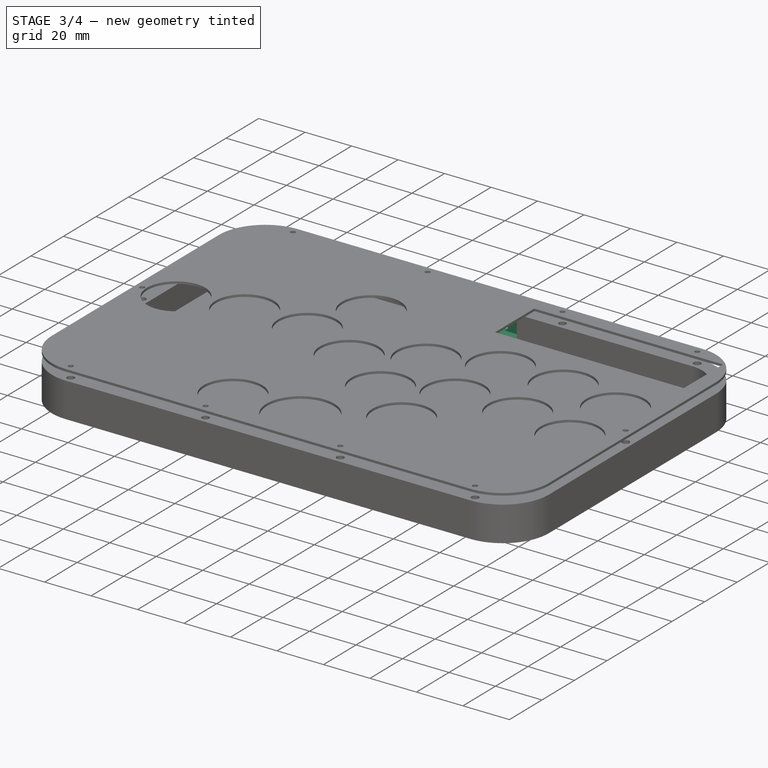
[diagram: stage 3 of 4 — iso view after this stage's code; geometry added in this stage tinted green]
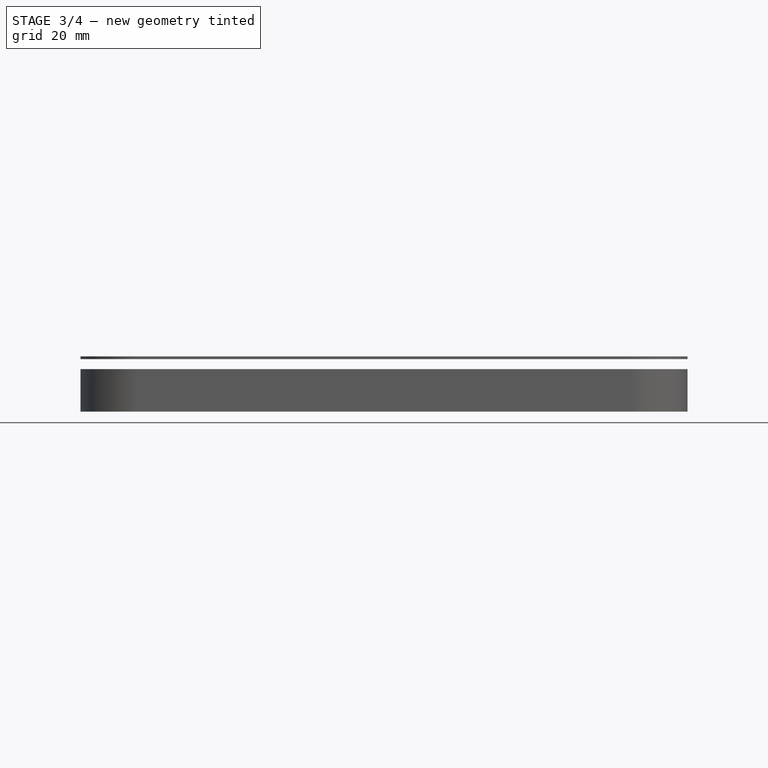
[diagram: stage 3 of 4 — front view after this stage's code; geometry added in this stage tinted green]
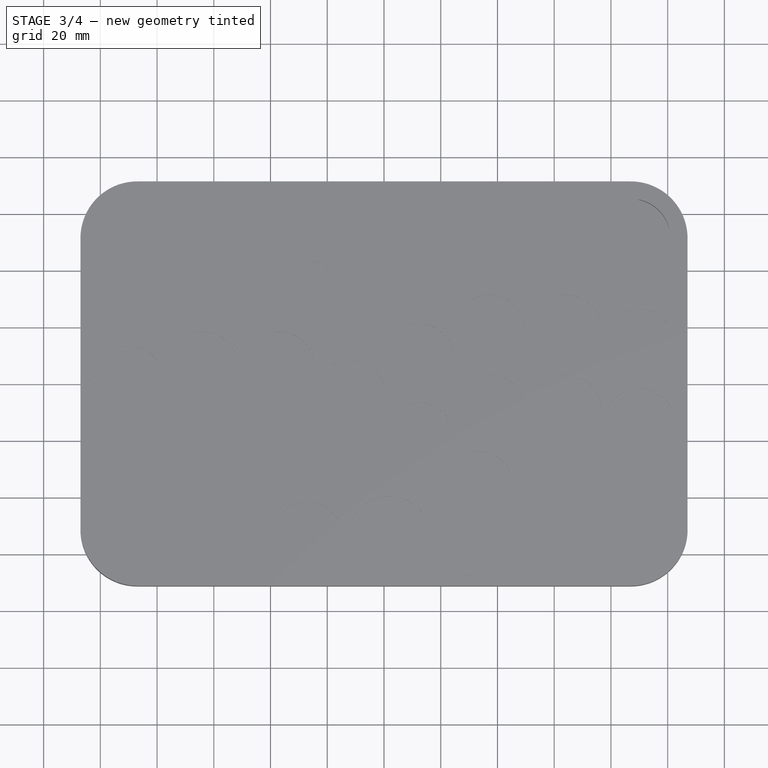
[diagram: stage 3 of 4 — top view after this stage's code; geometry added in this stage tinted green]
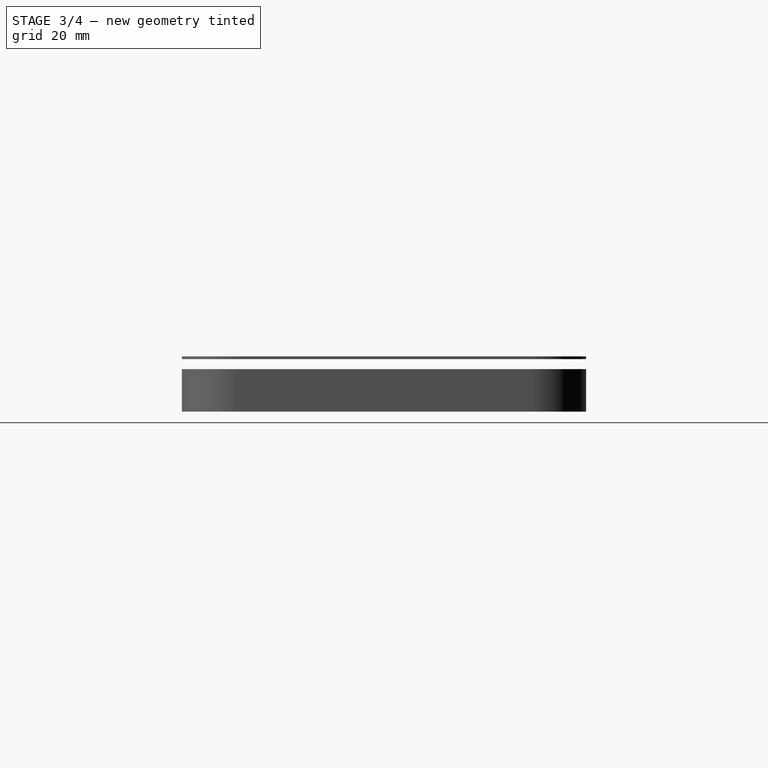
[diagram: stage 3 of 4 — right view after this stage's code; geometry added in this stage tinted green]
FEATURE [Sketcher::SketchObject] Sketch005
  ArcFitTolerance = 1e-06
  AttachmentSupport = -> [Pad002]
  ExternalGeometry = -> [Pad002]
  FullyConstrained = true
  MakeInternals = false
  MapMode = 5
  Placement = pos=(5.33e-14,65.25,0) rot=(1,0,0;1.5708rad)
  sketch-geometry (9):
    g0: LineSegment StartX=-2.875 StartY=-6.25 StartZ=0 EndX=2.875 EndY=-6.25 EndZ=0
    g1: LineSegment StartX=-2.875 StartY=-10 StartZ=0 EndX=2.875 EndY=-10 EndZ=0
    g2: ArcOfCircle CenterX=-2.875 CenterY=-8.125 CenterZ=0 NormalX=0 NormalY=0 NormalZ=1 AngleXU=0 Radius=1.875 StartAngle=1.5708 EndAngle=4.71239
    g3: ArcOfCircle CenterX=2.875 CenterY=-8.125 CenterZ=0 NormalX=0 NormalY=0 NormalZ=1 AngleXU=0 Radius=1.875 StartAngle=4.71239 EndAngle=7.85398
    g4: LineSegment StartX=2.875 StartY=-10 StartZ=0 EndX=11.5 EndY=-10 EndZ=0
    g5: LineSegment StartX=11.5 StartY=-10 StartZ=0 EndX=11.5 EndY=0 EndZ=0
    g6: LineSegment StartX=11.5 StartY=0 StartZ=0 EndX=-11.5 EndY=-2e-16 EndZ=0
    g7: LineSegment StartX=-11.5 StartY=-2e-16 StartZ=0 EndX=-11.5 EndY=-10 EndZ=0
    g8: LineSegment StartX=-11.5 StartY=-10 StartZ=0 EndX=-2.875 EndY=-10 EndZ=0
  constraints (21):
    c: Tangent(g1,g-3)
    c: Tangent(g0,g3) = 1.5708
    c: Tangent(g3,g1) = -1.5708
    c: Tangent(g2,g0) = 1.5708
    c: Tangent(g2,g1) = -1.5708
    c: DistanceX(g0,g0) = 5.75
    c: Distance(g1,g0) = 3.75
    c: Symmetric(g2,g3,g-2)
    c: Coincident(g1,g4)
    c: PointOnObject(g4,g-3)
    c: Coincident(g4,g5)
    c: PointOnObject(g7,g-3)
    c: Coincident(g8,g7)
    c: Coincident(g8,g1)
    c: Vertical(g7)
    c: Vertical(g5)
    c: Equal(g4,g8)
    c: Distance(g5,g7) = 23
    c: Coincident(g5,g6)
    c: Coincident(g6,g7)
    c: Tangent(g6,g-1)
FEATURE [PartDesign::Pocket] Pocket002
  BaseFeature = -> Pad002
  Direction = (0,1,-2e-16)
  Length = 4
  Length2 = 5
  Profile = -> Sketch005 [Edge2,Edge1,Edge3,Edge4,Edge5,Edge6]
  ReferenceAxis = -> Sketch005 [N_Axis]
  Refine = true
  Suppressed = false
  Type = 0
  expr: Length = abs(2 mm - <<wall>>.Constraints.thick)
FEATURE [PartDesign::Pocket] Pocket003
  BaseFeature = -> Pocket002
  Direction = (0,1,-2e-16)
  Length = 5
  Length2 = 5
  Profile = -> Sketch005 [Edge8,Edge1,Edge9,Edge7]
  ReferenceAxis = -> Sketch005 [N_Axis]
  Refine = true
  Suppressed = false
  Type = 1
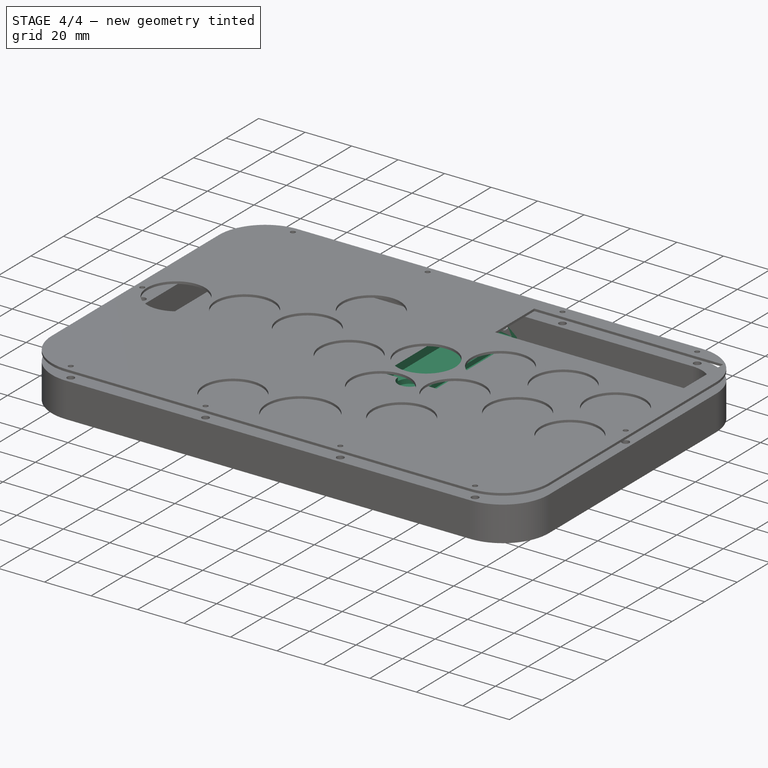
[diagram: stage 4 of 4 — iso view after this stage's code; geometry added in this stage tinted green]
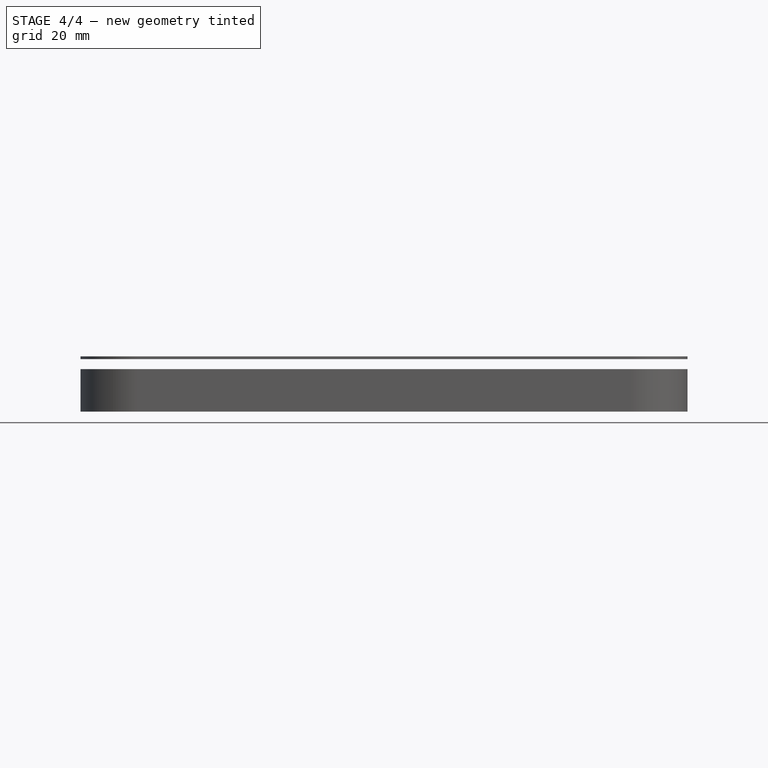
[diagram: stage 4 of 4 — front view after this stage's code; geometry added in this stage tinted green]
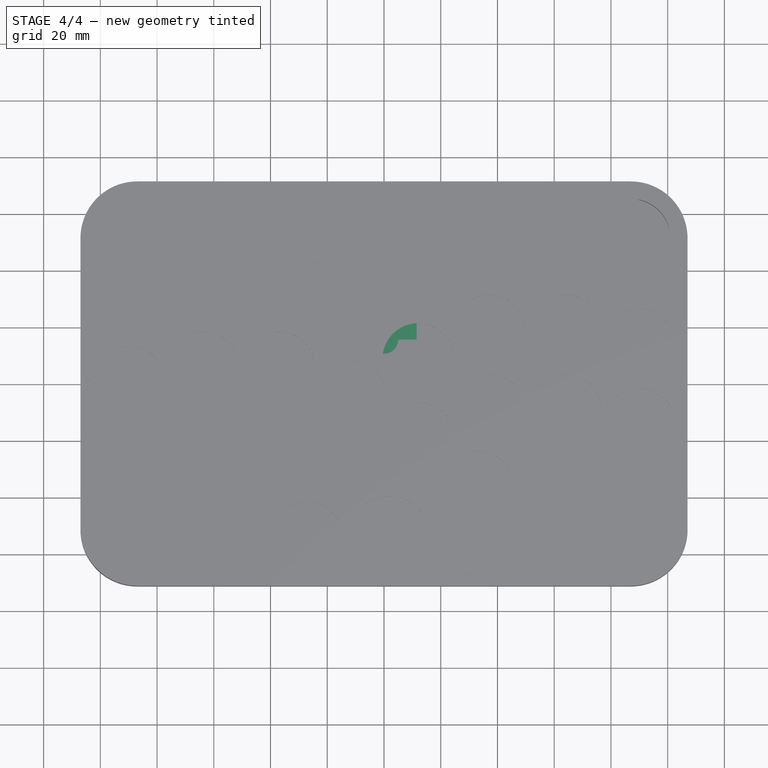
[diagram: stage 4 of 4 — top view after this stage's code; geometry added in this stage tinted green]
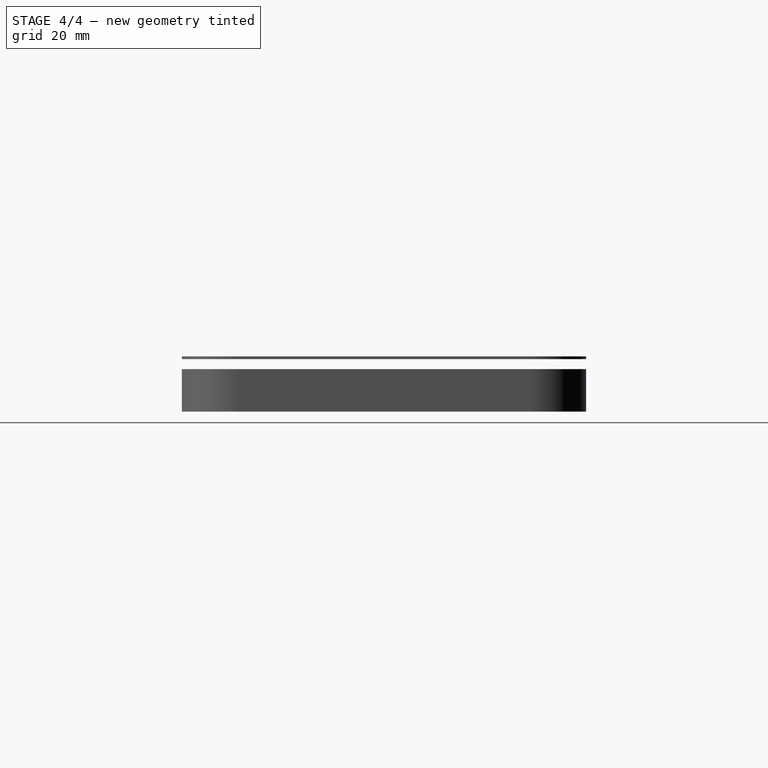
[diagram: stage 4 of 4 — right view after this stage's code; geometry added in this stage tinted green]
FEATURE [Sketcher::SketchObject] Sketch006
  ArcFitTolerance = 1e-06
  AttachmentSupport = -> [Pocket003]
  ExternalGeometry = -> [Pocket003]
  FullyConstrained = true
  MakeInternals = false
  MapMode = 5
  Placement = pos=(0,0,-10) rot=(0,0,1;0rad)
  sketch-geometry (4):
    g0: LineSegment StartX=-11.5 StartY=69.25 StartZ=0 EndX=-11.5 EndY=15.75 EndZ=0
    g1: LineSegment StartX=11.5 StartY=15.75 StartZ=0 EndX=11.5 EndY=69.25 EndZ=0
    g2: LineSegment StartX=-11.5 StartY=15.75 StartZ=0 EndX=11.5 EndY=15.75 EndZ=0
    g3: LineSegment StartX=-11.5 StartY=69.25 StartZ=0 EndX=11.5 EndY=69.25 EndZ=0
  constraints (10):
    c: Vertical(g0)
    c: Vertical(g1)
    c: Coincident(g0,g-3)
    c: Coincident(g1,g-4)
    c: DistanceY(g1,g1) = 53.5
    c: Coincident(g2,g0)
    c: Horizontal(g2)
    c: Coincident(g3,g0)
    c: Coincident(g2,g1)
    c: Coincident(g3,g1)
FEATURE [PartDesign::Pocket] Pocket004
  BaseFeature = -> Pocket003
  Direction = (0,0,-1)
  Length = 1.5
  Length2 = 5
  Profile = -> Sketch006
  ReferenceAxis = -> Sketch006 [N_Axis]
  Refine = true
  Suppressed = false
  Type = 0
FEATURE [Sketcher::SketchObject] Sketch007
  ArcFitTolerance = 1e-06
  AttachmentSupport = -> [Pocket004]
  ExternalGeometry = -> [Pocket004]
  FullyConstrained = true
  MakeInternals = false
  MapMode = 5
  Placement = pos=(0,0,-11.5) rot=(0,0,1;0rad)
  sketch-geometry (8):
    g0: LineSegment StartX=-11.5 StartY=69.25 StartZ=0 EndX=-11.5 EndY=15.75 EndZ=0
    g1: LineSegment StartX=-11.5 StartY=15.75 StartZ=0 EndX=-6.5 EndY=15.75 EndZ=0
    g2: LineSegment StartX=-6.5 StartY=15.75 StartZ=0 EndX=-6.5 EndY=69.25 EndZ=0
    g3: LineSegment StartX=-6.5 StartY=69.25 StartZ=0 EndX=-11.5 EndY=69.25 EndZ=0
    g4: LineSegment StartX=11.5 StartY=15.75 StartZ=0 EndX=11.5 EndY=69.25 EndZ=0
    g5: LineSegment StartX=11.5 StartY=69.25 StartZ=0 EndX=6.5 EndY=69.25 EndZ=0
    g6: LineSegment StartX=6.5 StartY=69.25 StartZ=0 EndX=6.5 EndY=15.75 EndZ=0
    g7: LineSegment StartX=6.5 StartY=15.75 StartZ=0 EndX=11.5 EndY=15.75 EndZ=0
  constraints (20):
    c: Coincident(g0,g1)
    c: Coincident(g1,g2)
    c: Coincident(g2,g3)
    c: Coincident(g3,g0)
    c: Vertical(g2)
    c: Horizontal(g1)
    c: Horizontal(g3)
    c: Coincident(g0,g-3)
    c: Coincident(g4,g5)
    c: Coincident(g5,g6)
    c: Coincident(g6,g7)
    c: Coincident(g7,g4)
    c: Vertical(g6)
    c: Horizontal(g5)
    c: Horizontal(g7)
    c: Coincident(g4,g-4)
    c: Coincident(g4,g-4)
    c: Coincident(g0,g-3)
    c: Equal(g1,g7)
    c: Distance(g7,g7) = 5
FEATURE [PartDesign::Pocket] Pocket005
  BaseFeature = -> Pocket004
  Direction = (0,0,-1)
  Length = 2
  Length2 = 5
  Profile = -> Sketch007
  ReferenceAxis = -> Sketch007 [N_Axis]
  Refine = true
  Suppressed = false
  Type = 0
FEATURE [Sketcher::SketchObject] Sketch008
  ArcFitTolerance = 1e-06
  AttachmentSupport = -> [Pocket005]
  ExternalGeometry = -> [Pocket005]
  FullyConstrained = true
  MakeInternals = false
  MapMode = 5
  Placement = pos=(0,0,-10) rot=(0,0,1;0rad)
  sketch-geometry (1):
    g0: Circle CenterX=5.52325e-11 CenterY=15.75 CenterZ=0 NormalX=0 NormalY=0 NormalZ=1 AngleXU=0 Radius=5
  constraints (2):
    c: Symmetric(g-3,g-3,g0)
    c: Diameter(g0) = 10
FEATURE [PartDesign::Pocket] Pocket006
  BaseFeature = -> Pocket005
  Direction = (0,0,-1)
  Length = 0
  Length2 = 5
  Profile = -> Sketch008
  ReferenceAxis = -> Sketch008 [N_Axis]
  Refine = true
  Suppressed = false
  Type = 3
  UpToFace = -> Pocket005 [Face50]
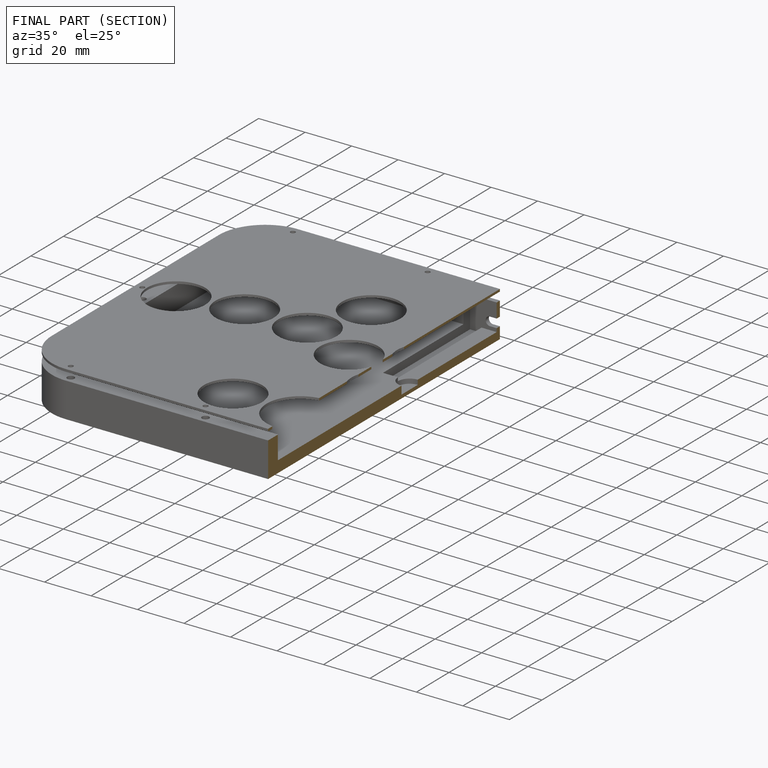
[diagram: finished part — half-section view (interior)]
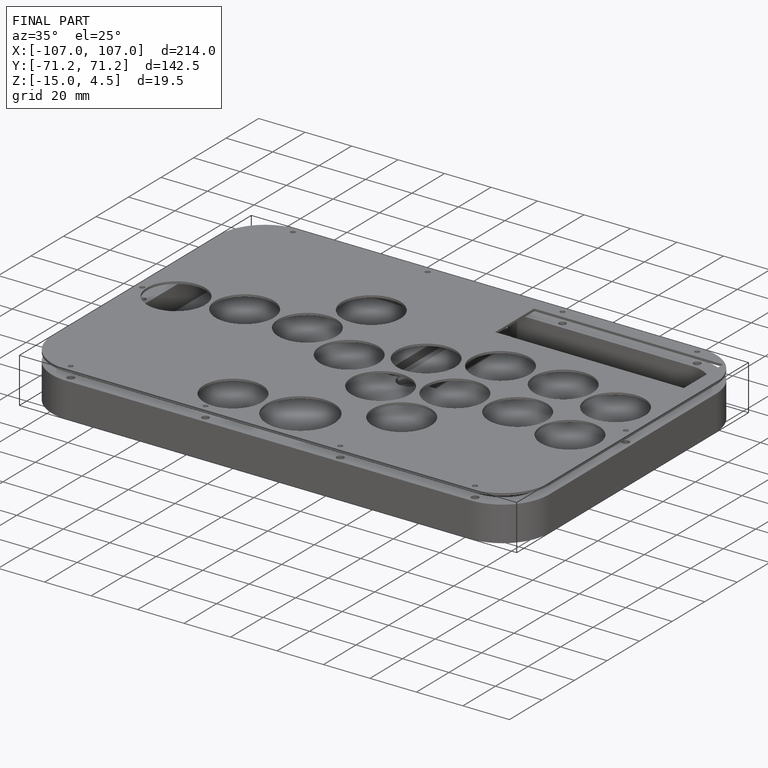
[diagram: finished part — iso view with bounding-box wireframe]
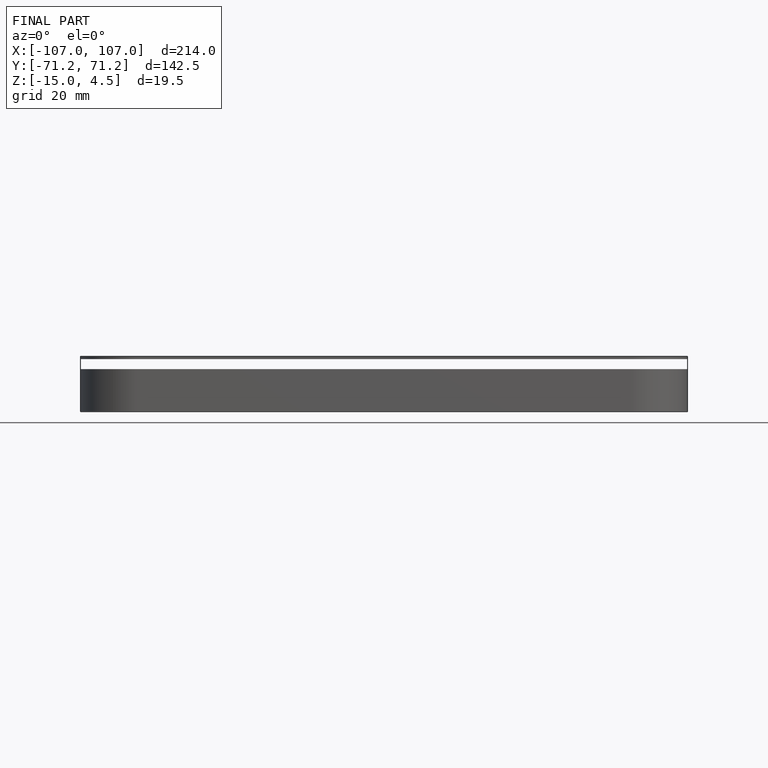
[diagram: finished part — front view with bounding-box wireframe]
